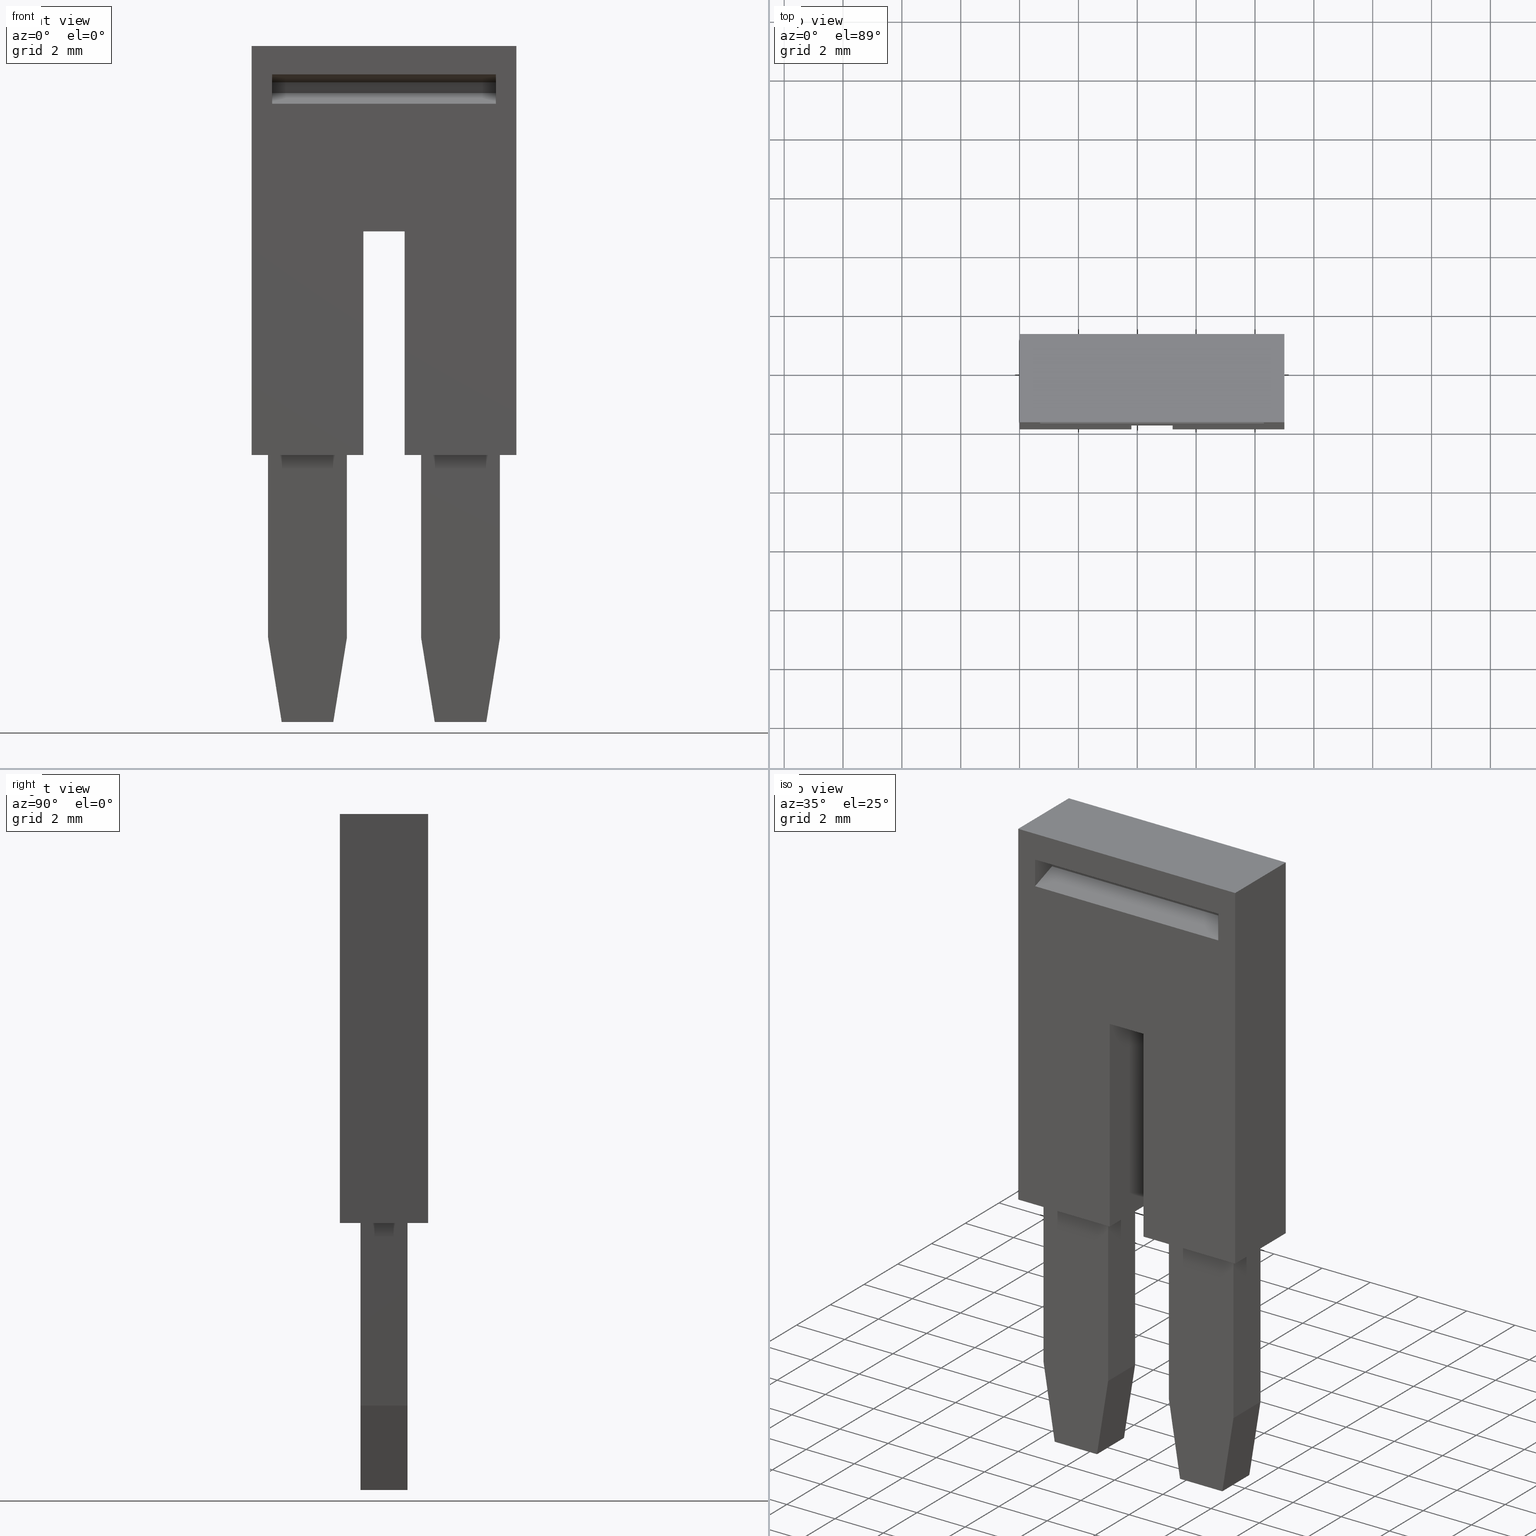
[diagram: canonical four-view strip — front | top / right | iso, engineering-drawing reading convention]
A machine part, canonical four-view strip (front | top / right | iso — engineering-drawing reading convention). The complete STEP part file that produces these views, byte-faithful:
ISO-10303-21;
HEADER;
FILE_DESCRIPTION(('Creo Elements/Direct Modeling STEP Export'),'2;1');
FILE_NAME(
'C:/temp/JobSpoolerServerData/JobServer Files/85c76c25-21e4-4d28-aa7e-fa
32fd0f2ff3/work/output/model.stp','2020-07-18T 0:31:43',(''),(''),
'Creo Elements/Direct Modeling STEP processor for AP214 (Solid Model)',
'Creo Elements/Direct Modeling 20.1A  29-Sep-2018 (C) Parametric Technol
ogy GmbH','');
FILE_SCHEMA(('AUTOMOTIVE_DESIGN { 1 0 10303 214 1 1 1 1 }'));
ENDSEC;
DATA;
#10=CARTESIAN_POINT('',(4.28576854106636,-14.1209712127693,
49.3599999999988));
#20=DIRECTION('',(3.8829925708189E-46,-3.08148791101716E-33,1.));
#30=DIRECTION('',(1.,1.26010313294955E-13,0.));
#40=AXIS2_PLACEMENT_3D('',#10,#20,#30);
#50=PLANE('',#40);
#60=CARTESIAN_POINT('',(5.60716722168504,-12.6051239999998,
49.3599999999988));
#70=DIRECTION('',(1.26010313294955E-13,-1.,-3.08148791101716E-33));
#80=VECTOR('',#70,1.);
#90=LINE('',#60,#80);
#100=CARTESIAN_POINT('',(5.6071672216846,-9.17500000000018,
49.3599999999988));
#110=VERTEX_POINT('',#100);
#120=CARTESIAN_POINT('',(5.60716722168636,-23.0750000000002,
49.3599999999988));
#130=VERTEX_POINT('',#120);
#140=EDGE_CURVE('',#110,#130,#90,.T.);
#150=ORIENTED_EDGE('',*,*,#140,.T.);
#160=CARTESIAN_POINT('',(5.60716722168535,-9.17500000000018,
49.3599999999988));
#170=DIRECTION('',(1.,1.26010313294955E-13,0.));
#180=VECTOR('',#170,1.);
#190=LINE('',#160,#180);
#200=CARTESIAN_POINT('',(2.6071672216846,-9.17500000000056,
49.3599999999988));
#210=VERTEX_POINT('',#200);
#220=EDGE_CURVE('',#210,#110,#190,.T.);
#230=ORIENTED_EDGE('',*,*,#220,.T.);
#240=CARTESIAN_POINT('',(2.60716722168503,-12.6051240000002,
49.3599999999988));
#250=DIRECTION('',(1.26010313294955E-13,-1.,-3.08148791101716E-33));
#260=VECTOR('',#250,1.);
#270=LINE('',#240,#260);
#280=CARTESIAN_POINT('',(2.60716722168635,-23.0750000000006,
49.3599999999988));
#290=VERTEX_POINT('',#280);
#300=EDGE_CURVE('',#210,#290,#270,.T.);
#310=ORIENTED_EDGE('',*,*,#300,.F.);
#320=CARTESIAN_POINT('',(5.60716722168535,-23.0750000000002,
49.3599999999988));
#330=DIRECTION('',(1.,1.26010313294955E-13,0.));
#340=VECTOR('',#330,1.);
#350=LINE('',#320,#340);
#360=EDGE_CURVE('',#290,#130,#350,.T.);
#370=ORIENTED_EDGE('',*,*,#360,.F.);
#380=EDGE_LOOP('',(#370,#310,#230,#150));
#390=FACE_OUTER_BOUND('',#380,.T.);
#400=ADVANCED_FACE('',(#390),#50,.F.);
#410=COLOUR_RGB('',0.627451002597809,0.129411771893501,0.156862750649452
);
#420=FILL_AREA_STYLE_COLOUR('',#410);
#430=FILL_AREA_STYLE('',(#420));
#440=SURFACE_STYLE_FILL_AREA(#430);
#450=SURFACE_SIDE_STYLE('',(#440));
#460=SURFACE_STYLE_USAGE(.BOTH.,#450);
#470=PRESENTATION_STYLE_ASSIGNMENT((#460));
#480=CARTESIAN_POINT('',(5.60716722168476,-10.4163739892137,
49.6255163824959));
#490=DIRECTION('',(1.,1.26010313294955E-13,3.88299257081841E-46));
#500=DIRECTION('',(1.26010313294955E-13,-1.,-3.08148791101716E-33));
#510=AXIS2_PLACEMENT_3D('',#480,#490,#500);
#520=PLANE('',#510);
#530=CARTESIAN_POINT('',(5.60716722168485,-11.1389702342664,47.074984));
#540=DIRECTION('',(5.08939746052553E-30,-4.04088134360551E-17,-1.));
#550=VECTOR('',#540,1.);
#560=LINE('',#530,#550);
#570=CARTESIAN_POINT('',(5.60716722168485,-11.1389702342664,
57.6599999999988));
#580=VERTEX_POINT('',#570);
#590=CARTESIAN_POINT('',(5.60716722168485,-11.1389702342664,
50.0599999999988));
#600=VERTEX_POINT('',#590);
#610=EDGE_CURVE('',#580,#600,#560,.T.);
#620=ORIENTED_EDGE('',*,*,#610,.F.);
#630=CARTESIAN_POINT('',(5.607167221685,-12.305124,50.0599999999988));
#640=DIRECTION('',(-1.26010313294955E-13,1.,0.));
#650=VECTOR('',#640,1.);
#660=LINE('',#630,#650);
#670=CARTESIAN_POINT('',(5.60716722168473,-10.1410254037846,
50.0599999999988));
#680=VERTEX_POINT('',#670);
#690=EDGE_CURVE('',#600,#680,#660,.T.);
#700=ORIENTED_EDGE('',*,*,#690,.F.);
#710=CARTESIAN_POINT('',(5.60716722168473,-10.1410254037846,47.074984));
#720=DIRECTION('',(3.74687937002048E-30,-2.97483362866748E-17,1.));
#730=VECTOR('',#720,1.);
#740=LINE('',#710,#730);
#750=CARTESIAN_POINT('',(5.60716722168473,-10.1410254037846,
57.6599999999988));
#760=VERTEX_POINT('',#750);
#770=EDGE_CURVE('',#680,#760,#740,.T.);
#780=ORIENTED_EDGE('',*,*,#770,.F.);
#790=CARTESIAN_POINT('',(5.607167221685,-12.305124,57.6599999999988));
#800=DIRECTION('',(1.26010313294955E-13,-1.,0.));
#810=VECTOR('',#800,1.);
#820=LINE('',#790,#810);
#830=EDGE_CURVE('',#760,#580,#820,.T.);
#840=ORIENTED_EDGE('',*,*,#830,.F.);
#850=EDGE_LOOP('',(#840,#780,#700,#620));
#860=FACE_BOUND('',#850,.T.);
#870=ORIENTED_EDGE('',*,*,#140,.F.);
#880=CARTESIAN_POINT('',(5.60716722168636,-23.0750000000002,
60.6450159999975));
#890=DIRECTION('',(0.,3.08148791101677E-33,-1.));
#900=VECTOR('',#890,1.);
#910=LINE('',#880,#900);
#920=CARTESIAN_POINT('',(5.60716722168636,-23.0750000000002,
53.1599999999988));
#930=VERTEX_POINT('',#920);
#940=EDGE_CURVE('',#930,#130,#910,.T.);
#950=ORIENTED_EDGE('',*,*,#940,.T.);
#960=CARTESIAN_POINT('',(5.60716722168504,-12.6051239999998,
53.1599999999988));
#970=DIRECTION('',(1.26010313294955E-13,-1.,-3.08148791101716E-33));
#980=VECTOR('',#970,1.);
#990=LINE('',#960,#980);
#1000=CARTESIAN_POINT('',(5.6071672216854,-15.4750000000002,
53.1599999999988));
#1010=VERTEX_POINT('',#1000);
#1020=EDGE_CURVE('',#1010,#930,#990,.T.);
#1030=ORIENTED_EDGE('',*,*,#1020,.T.);
#1040=CARTESIAN_POINT('',(5.6071672216854,-15.4750000000002,
60.6450159999975));
#1050=DIRECTION('',(0.,-3.08148791101677E-33,1.));
#1060=VECTOR('',#1050,1.);
#1070=LINE('',#1040,#1060);
#1080=CARTESIAN_POINT('',(5.6071672216854,-15.4750000000002,
54.5599999999988));
#1090=VERTEX_POINT('',#1080);
#1100=EDGE_CURVE('',#1010,#1090,#1070,.T.);
#1110=ORIENTED_EDGE('',*,*,#1100,.F.);
#1120=CARTESIAN_POINT('',(5.60716722168504,-12.6051239999998,
54.5599999999988));
#1130=DIRECTION('',(1.26010313294955E-13,-1.,-3.08148791101716E-33));
#1140=VECTOR('',#1130,1.);
#1150=LINE('',#1120,#1140);
#1160=CARTESIAN_POINT('',(5.60716722168636,-23.0750000000002,
54.5599999999988));
#1170=VERTEX_POINT('',#1160);
#1180=EDGE_CURVE('',#1090,#1170,#1150,.T.);
#1190=ORIENTED_EDGE('',*,*,#1180,.F.);
#1200=CARTESIAN_POINT('',(5.60716722168636,-23.0750000000002,
60.6450159999975));
#1210=DIRECTION('',(0.,3.08148791101677E-33,-1.));
#1220=VECTOR('',#1210,1.);
#1230=LINE('',#1200,#1220);
#1240=CARTESIAN_POINT('',(5.60716722168636,-23.0750000000002,
58.3599999999988));
#1250=VERTEX_POINT('',#1240);
#1260=EDGE_CURVE('',#1250,#1170,#1230,.T.);
#1270=ORIENTED_EDGE('',*,*,#1260,.T.);
#1280=CARTESIAN_POINT('',(5.60716722168504,-12.6051239999998,
58.3599999999988));
#1290=DIRECTION('',(1.26010313294955E-13,-1.,-3.08148791101716E-33));
#1300=VECTOR('',#1290,1.);
#1310=LINE('',#1280,#1300);
#1320=CARTESIAN_POINT('',(5.6071672216846,-9.17500000000018,
58.3599999999988));
#1330=VERTEX_POINT('',#1320);
#1340=EDGE_CURVE('',#1330,#1250,#1310,.T.);
#1350=ORIENTED_EDGE('',*,*,#1340,.T.);
#1360=CARTESIAN_POINT('',(5.60716722168461,-9.17500000000018,
60.6450159999975));
#1370=DIRECTION('',(0.,-3.08148791101677E-33,1.));
#1380=VECTOR('',#1370,1.);
#1390=LINE('',#1360,#1380);
#1400=EDGE_CURVE('',#110,#1330,#1390,.T.);
#1410=ORIENTED_EDGE('',*,*,#1400,.T.);
#1420=EDGE_LOOP('',(#1410,#1350,#1270,#1190,#1110,#1030,#950,#870));
#1430=FACE_OUTER_BOUND('',#1420,.T.);
#1440=ADVANCED_FACE('',(#860,#1430),#520,.T.);
#1450=COLOUR_RGB('',0.627451002597809,0.129411771893501,
0.156862750649452);
#1460=FILL_AREA_STYLE_COLOUR('',#1450);
#1470=FILL_AREA_STYLE('',(#1460));
#1480=SURFACE_STYLE_FILL_AREA(#1470);
#1490=SURFACE_SIDE_STYLE('',(#1480));
#1500=SURFACE_STYLE_USAGE(.BOTH.,#1490);
#1510=PRESENTATION_STYLE_ASSIGNMENT((#1500));
#1520=CARTESIAN_POINT('',(3.21402809924109,-15.4750000000005,
55.186056195176));
#1530=DIRECTION('',(1.26010313294955E-13,-1.,-3.08148791101677E-33));
#1540=DIRECTION('',(-1.,-1.26010313294955E-13,0.));
#1550=AXIS2_PLACEMENT_3D('',#1520,#1530,#1540);
#1560=PLANE('',#1550);
#1570=CARTESIAN_POINT('',(2.6071672216854,-15.4750000000006,
60.6450159999975));
#1580=DIRECTION('',(0.,-3.08148791101677E-33,1.));
#1590=VECTOR('',#1580,1.);
#1600=LINE('',#1570,#1590);
#1610=CARTESIAN_POINT('',(2.6071672216854,-15.4750000000006,
53.1599999999988));
#1620=VERTEX_POINT('',#1610);
#1630=CARTESIAN_POINT('',(2.6071672216854,-15.4750000000006,
54.5599999999988));
#1640=VERTEX_POINT('',#1630);
#1650=EDGE_CURVE('',#1620,#1640,#1600,.T.);
#1660=ORIENTED_EDGE('',*,*,#1650,.F.);
#1670=CARTESIAN_POINT('',(2.60716722168541,-15.4750000000006,
54.5599999999988));
#1680=DIRECTION('',(-1.,-1.26010313294955E-13,0.));
#1690=VECTOR('',#1680,1.);
#1700=LINE('',#1670,#1690);
#1710=EDGE_CURVE('',#1090,#1640,#1700,.T.);
#1720=ORIENTED_EDGE('',*,*,#1710,.T.);
#1730=ORIENTED_EDGE('',*,*,#1100,.T.);
#1740=CARTESIAN_POINT('',(2.60716722168541,-15.4750000000006,
53.1599999999988));
#1750=DIRECTION('',(-1.,-1.26010313294955E-13,0.));
#1760=VECTOR('',#1750,1.);
#1770=LINE('',#1740,#1760);
#1780=EDGE_CURVE('',#1010,#1620,#1770,.T.);
#1790=ORIENTED_EDGE('',*,*,#1780,.F.);
#1800=EDGE_LOOP('',(#1790,#1730,#1720,#1660));
#1810=FACE_OUTER_BOUND('',#1800,.T.);
#1820=ADVANCED_FACE('',(#1810),#1560,.T.);
#1830=COLOUR_RGB('',0.627451002597809,0.129411771893501,
0.156862750649452);
#1840=FILL_AREA_STYLE_COLOUR('',#1830);
#1850=FILL_AREA_STYLE('',(#1840));
#1860=SURFACE_STYLE_FILL_AREA(#1850);
#1870=SURFACE_SIDE_STYLE('',(#1860));
#1880=SURFACE_STYLE_USAGE(.BOTH.,#1870);
#1890=PRESENTATION_STYLE_ASSIGNMENT((#1880));
#1900=CARTESIAN_POINT('',(3.30716722167661,-23.0750000000005,
50.0099999999971));
#1910=DIRECTION('',(1.26010313294955E-13,-1.,-3.08148791101677E-33));
#1920=DIRECTION('',(0.,-3.08148791101677E-33,1.));
#1930=AXIS2_PLACEMENT_3D('',#1900,#1910,#1920);
#1940=PLANE('',#1930);
#1950=CARTESIAN_POINT('',(5.60716722168535,-23.0750000000002,
52.5999999987961));
#1960=DIRECTION('',(1.,1.26010313294955E-13,8.57252759403298E-16));
#1970=VECTOR('',#1960,1.);
#1980=LINE('',#1950,#1970);
#1990=CARTESIAN_POINT('',(3.30716722167658,-23.0750000000005,
52.5999999987961));
#2000=VERTEX_POINT('',#1990);
#2010=CARTESIAN_POINT('',(4.90716722167658,-23.0750000000003,
52.5999999987961));
#2020=VERTEX_POINT('',#2010);
#2030=EDGE_CURVE('',#2000,#2020,#1980,.T.);
#2040=ORIENTED_EDGE('',*,*,#2030,.T.);
#2050=CARTESIAN_POINT('',(3.30716722167659,-23.0750000000005,47.074984))
;
#2060=DIRECTION('',(8.57252759403298E-16,1.07975336402126E-28,-1.));
#2070=VECTOR('',#2060,1.);
#2080=LINE('',#2050,#2070);
#2090=CARTESIAN_POINT('',(3.30716722167659,-23.0750000000005,
49.9199999990358));
#2100=VERTEX_POINT('',#2090);
#2110=EDGE_CURVE('',#2000,#2100,#2080,.T.);
#2120=ORIENTED_EDGE('',*,*,#2110,.F.);
#2130=CARTESIAN_POINT('',(5.60716722168535,-23.0750000000002,
49.9199999990358));
#2140=DIRECTION('',(-1.,-1.26010313294955E-13,-8.57252759403285E-16));
#2150=VECTOR('',#2140,1.);
#2160=LINE('',#2130,#2150);
#2170=CARTESIAN_POINT('',(4.90716722167659,-23.0750000000003,
49.9199999990358));
#2180=VERTEX_POINT('',#2170);
#2190=EDGE_CURVE('',#2180,#2100,#2160,.T.);
#2200=ORIENTED_EDGE('',*,*,#2190,.T.);
#2210=CARTESIAN_POINT('',(4.90716722167659,-23.0750000000003,47.074984))
;
#2220=DIRECTION('',(8.57252759403298E-16,1.07975336402126E-28,-1.));
#2230=VECTOR('',#2220,1.);
#2240=LINE('',#2210,#2230);
#2250=EDGE_CURVE('',#2020,#2180,#2240,.T.);
#2260=ORIENTED_EDGE('',*,*,#2250,.T.);
#2270=EDGE_LOOP('',(#2260,#2200,#2120,#2040));
#2280=FACE_BOUND('',#2270,.T.);
#2290=ORIENTED_EDGE('',*,*,#940,.F.);
#2300=ORIENTED_EDGE('',*,*,#360,.T.);
#2310=CARTESIAN_POINT('',(2.60716722168635,-23.0750000000006,
60.6450159999975));
#2320=DIRECTION('',(0.,3.08148791101677E-33,-1.));
#2330=VECTOR('',#2320,1.);
#2340=LINE('',#2310,#2330);
#2350=CARTESIAN_POINT('',(2.60716722168635,-23.0750000000006,
53.1599999999988));
#2360=VERTEX_POINT('',#2350);
#2370=EDGE_CURVE('',#2360,#290,#2340,.T.);
#2380=ORIENTED_EDGE('',*,*,#2370,.T.);
#2390=CARTESIAN_POINT('',(2.60716722168637,-23.0750000000006,
53.1599999999988));
#2400=DIRECTION('',(1.,1.26010313294955E-13,0.));
#2410=VECTOR('',#2400,1.);
#2420=LINE('',#2390,#2410);
#2430=EDGE_CURVE('',#2360,#930,#2420,.T.);
#2440=ORIENTED_EDGE('',*,*,#2430,.F.);
#2450=EDGE_LOOP('',(#2440,#2380,#2300,#2290));
#2460=FACE_OUTER_BOUND('',#2450,.T.);
#2470=ADVANCED_FACE('',(#2280,#2460),#1940,.T.);
#2480=COLOUR_RGB('',0.627451002597809,0.129411771893501,
0.156862750649452);
#2490=FILL_AREA_STYLE_COLOUR('',#2480);
#2500=FILL_AREA_STYLE('',(#2490));
#2510=SURFACE_STYLE_FILL_AREA(#2500);
#2520=SURFACE_SIDE_STYLE('',(#2510));
#2530=SURFACE_STYLE_USAGE(.BOTH.,#2520);
#2540=PRESENTATION_STYLE_ASSIGNMENT((#2530));
#2550=CARTESIAN_POINT('',(5.60716722168461,-9.17500000000018,
78.8599999999988));
#2560=DIRECTION('',(-1.26010313294955E-13,1.,3.08148791101677E-33));
#2570=DIRECTION('',(0.,3.08148791101677E-33,-1.));
#2580=AXIS2_PLACEMENT_3D('',#2550,#2560,#2570);
#2590=PLANE('',#2580);
#2600=ORIENTED_EDGE('',*,*,#1400,.F.);
#2610=CARTESIAN_POINT('',(2.60716722168461,-9.17500000000056,
58.3599999999988));
#2620=DIRECTION('',(1.,1.26010313294955E-13,0.));
#2630=VECTOR('',#2620,1.);
#2640=LINE('',#2610,#2630);
#2650=CARTESIAN_POINT('',(2.6071672216846,-9.17500000000056,
58.3599999999988));
#2660=VERTEX_POINT('',#2650);
#2670=EDGE_CURVE('',#2660,#1330,#2640,.T.);
#2680=ORIENTED_EDGE('',*,*,#2670,.T.);
#2690=CARTESIAN_POINT('',(2.6071672216846,-9.17500000000056,
60.6450159999975));
#2700=DIRECTION('',(0.,3.08148791101677E-33,-1.));
#2710=VECTOR('',#2700,1.);
#2720=LINE('',#2690,#2710);
#2730=EDGE_CURVE('',#2660,#210,#2720,.T.);
#2740=ORIENTED_EDGE('',*,*,#2730,.F.);
#2750=ORIENTED_EDGE('',*,*,#220,.F.);
#2760=EDGE_LOOP('',(#2750,#2740,#2680,#2600));
#2770=FACE_OUTER_BOUND('',#2760,.T.);
#2780=ADVANCED_FACE('',(#2770),#2590,.T.);
#2790=COLOUR_RGB('',0.627451002597809,0.129411771893501,
0.156862750649452);
#2800=FILL_AREA_STYLE_COLOUR('',#2790);
#2810=FILL_AREA_STYLE('',(#2800));
#2820=SURFACE_STYLE_FILL_AREA(#2810);
#2830=SURFACE_SIDE_STYLE('',(#2820));
#2840=SURFACE_STYLE_USAGE(.BOTH.,#2830);
#2850=PRESENTATION_STYLE_ASSIGNMENT((#2840));
#2860=CARTESIAN_POINT('',(2.60716722168436,-7.23265100000016,
24.0999898000483));
#2870=DIRECTION('',(1.,1.26010313294955E-13,3.88299257081841E-46));
#2880=DIRECTION('',(1.26010313294955E-13,-1.,-3.08148791101716E-33));
#2890=AXIS2_PLACEMENT_3D('',#2860,#2870,#2880);
#2900=PLANE('',#2890);
#2910=CARTESIAN_POINT('',(2.60716722168485,-11.1389702342668,47.074984))
;
#2920=DIRECTION('',(-5.09267671146659E-30,4.04088134360551E-17,-1.));
#2930=VECTOR('',#2920,1.);
#2940=LINE('',#2910,#2930);
#2950=CARTESIAN_POINT('',(2.60716722168485,-11.1389702342668,
57.6599999999988));
#2960=VERTEX_POINT('',#2950);
#2970=CARTESIAN_POINT('',(2.60716722168485,-11.1389702342668,
50.0599999999988));
#2980=VERTEX_POINT('',#2970);
#2990=EDGE_CURVE('',#2960,#2980,#2940,.T.);
#3000=ORIENTED_EDGE('',*,*,#2990,.T.);
#3010=CARTESIAN_POINT('',(2.607167221685,-12.305124,57.6599999999988));
#3020=DIRECTION('',(1.26010313294955E-13,-1.,0.));
#3030=VECTOR('',#3020,1.);
#3040=LINE('',#3010,#3030);
#3050=CARTESIAN_POINT('',(2.60716722168472,-10.141025403785,
57.6599999999988));
#3060=VERTEX_POINT('',#3050);
#3070=EDGE_CURVE('',#3060,#2960,#3040,.T.);
#3080=ORIENTED_EDGE('',*,*,#3070,.T.);
#3090=CARTESIAN_POINT('',(2.60716722168472,-10.141025403785,47.074984));
#3100=DIRECTION('',(-3.74847446553773E-30,2.97483362866747E-17,1.));
#3110=VECTOR('',#3100,1.);
#3120=LINE('',#3090,#3110);
#3130=CARTESIAN_POINT('',(2.60716722168472,-10.141025403785,
50.0599999999988));
#3140=VERTEX_POINT('',#3130);
#3150=EDGE_CURVE('',#3140,#3060,#3120,.T.);
#3160=ORIENTED_EDGE('',*,*,#3150,.T.);
#3170=CARTESIAN_POINT('',(2.607167221685,-12.305124,50.0599999999988));
#3180=DIRECTION('',(-1.26010313294955E-13,1.,0.));
#3190=VECTOR('',#3180,1.);
#3200=LINE('',#3170,#3190);
#3210=EDGE_CURVE('',#2980,#3140,#3200,.T.);
#3220=ORIENTED_EDGE('',*,*,#3210,.T.);
#3230=EDGE_LOOP('',(#3220,#3160,#3080,#3000));
#3240=FACE_BOUND('',#3230,.T.);
#3250=CARTESIAN_POINT('',(2.60716722168503,-12.6051240000002,
58.3599999999988));
#3260=DIRECTION('',(1.26010313294955E-13,-1.,-3.08148791101716E-33));
#3270=VECTOR('',#3260,1.);
#3280=LINE('',#3250,#3270);
#3290=CARTESIAN_POINT('',(2.60716722168635,-23.0750000000006,
58.3599999999988));
#3300=VERTEX_POINT('',#3290);
#3310=EDGE_CURVE('',#2660,#3300,#3280,.T.);
#3320=ORIENTED_EDGE('',*,*,#3310,.F.);
#3330=CARTESIAN_POINT('',(2.60716722168635,-23.0750000000006,
60.6450159999975));
#3340=DIRECTION('',(0.,3.08148791101677E-33,-1.));
#3350=VECTOR('',#3340,1.);
#3360=LINE('',#3330,#3350);
#3370=CARTESIAN_POINT('',(2.60716722168635,-23.0750000000006,
54.5599999999988));
#3380=VERTEX_POINT('',#3370);
#3390=EDGE_CURVE('',#3300,#3380,#3360,.T.);
#3400=ORIENTED_EDGE('',*,*,#3390,.F.);
#3410=CARTESIAN_POINT('',(2.60716722168503,-12.6051240000002,
54.5599999999988));
#3420=DIRECTION('',(1.26010313294955E-13,-1.,-3.08148791101716E-33));
#3430=VECTOR('',#3420,1.);
#3440=LINE('',#3410,#3430);
#3450=EDGE_CURVE('',#1640,#3380,#3440,.T.);
#3460=ORIENTED_EDGE('',*,*,#3450,.T.);
#3470=ORIENTED_EDGE('',*,*,#1650,.T.);
#3480=CARTESIAN_POINT('',(2.60716722168503,-12.6051240000002,
53.1599999999988));
#3490=DIRECTION('',(1.26010313294955E-13,-1.,-3.08148791101716E-33));
#3500=VECTOR('',#3490,1.);
#3510=LINE('',#3480,#3500);
#3520=EDGE_CURVE('',#1620,#2360,#3510,.T.);
#3530=ORIENTED_EDGE('',*,*,#3520,.F.);
#3540=ORIENTED_EDGE('',*,*,#2370,.F.);
#3550=ORIENTED_EDGE('',*,*,#300,.T.);
#3560=ORIENTED_EDGE('',*,*,#2730,.T.);
#3570=EDGE_LOOP('',(#3560,#3550,#3540,#3530,#3470,#3460,#3400,#3320));
#3580=FACE_OUTER_BOUND('',#3570,.T.);
#3590=ADVANCED_FACE('',(#3240,#3580),#2900,.F.);
#3600=COLOUR_RGB('',0.627451002597809,0.129411771893501,
0.156862750649452);
#3610=FILL_AREA_STYLE_COLOUR('',#3600);
#3620=FILL_AREA_STYLE('',(#3610));
#3630=SURFACE_STYLE_FILL_AREA(#3620);
#3640=SURFACE_SIDE_STYLE('',(#3630));
#3650=SURFACE_STYLE_USAGE(.BOTH.,#3640);
#3660=PRESENTATION_STYLE_ASSIGNMENT((#3650));
#3670=CARTESIAN_POINT('',(3.30716722167661,-23.0750000000005,
55.2099999999971));
#3680=DIRECTION('',(1.26010313294955E-13,-1.,-3.08148791101677E-33));
#3690=DIRECTION('',(0.,-3.08148791101677E-33,1.));
#3700=AXIS2_PLACEMENT_3D('',#3670,#3680,#3690);
#3710=PLANE('',#3700);
#3720=CARTESIAN_POINT('',(5.60716722168535,-23.0750000000002,
55.1199999990359));
#3730=DIRECTION('',(-1.,-1.26010313294955E-13,3.2641479565956E-16));
#3740=VECTOR('',#3730,1.);
#3750=LINE('',#3720,#3740);
#3760=CARTESIAN_POINT('',(4.90716722167658,-23.0750000000003,
55.1199999990359));
#3770=VERTEX_POINT('',#3760);
#3780=CARTESIAN_POINT('',(3.30716722167658,-23.0750000000005,
55.1199999990359));
#3790=VERTEX_POINT('',#3780);
#3800=EDGE_CURVE('',#3770,#3790,#3750,.T.);
#3810=ORIENTED_EDGE('',*,*,#3800,.T.);
#3820=CARTESIAN_POINT('',(4.90716722167659,-23.0750000000003,47.074984))
;
#3830=DIRECTION('',(8.57252759403298E-16,1.07975336402126E-28,-1.));
#3840=VECTOR('',#3830,1.);
#3850=LINE('',#3820,#3840);
#3860=CARTESIAN_POINT('',(4.90716722167658,-23.0750000000003,
57.7999999990348));
#3870=VERTEX_POINT('',#3860);
#3880=EDGE_CURVE('',#3870,#3770,#3850,.T.);
#3890=ORIENTED_EDGE('',*,*,#3880,.T.);
#3900=CARTESIAN_POINT('',(5.60716722168535,-23.0750000000002,
57.7999999990348));
#3910=DIRECTION('',(-1.,-1.26010313294955E-13,-1.14423774522321E-17));
#3920=VECTOR('',#3910,1.);
#3930=LINE('',#3900,#3920);
#3940=CARTESIAN_POINT('',(3.30716722167658,-23.0750000000005,
57.7999999990348));
#3950=VERTEX_POINT('',#3940);
#3960=EDGE_CURVE('',#3870,#3950,#3930,.T.);
#3970=ORIENTED_EDGE('',*,*,#3960,.F.);
#3980=CARTESIAN_POINT('',(3.30716722167659,-23.0750000000005,47.074984))
;
#3990=DIRECTION('',(8.57252759403298E-16,1.07975336402126E-28,-1.));
#4000=VECTOR('',#3990,1.);
#4010=LINE('',#3980,#4000);
#4020=EDGE_CURVE('',#3950,#3790,#4010,.T.);
#4030=ORIENTED_EDGE('',*,*,#4020,.F.);
#4040=EDGE_LOOP('',(#4030,#3970,#3890,#3810));
#4050=FACE_BOUND('',#4040,.T.);
#4060=ORIENTED_EDGE('',*,*,#3390,.T.);
#4070=CARTESIAN_POINT('',(2.60716722168637,-23.0750000000006,
58.3599999999988));
#4080=DIRECTION('',(-1.,-1.26010313294955E-13,0.));
#4090=VECTOR('',#4080,1.);
#4100=LINE('',#4070,#4090);
#4110=EDGE_CURVE('',#1250,#3300,#4100,.T.);
#4120=ORIENTED_EDGE('',*,*,#4110,.T.);
#4130=ORIENTED_EDGE('',*,*,#1260,.F.);
#4140=CARTESIAN_POINT('',(2.60716722168637,-23.0750000000006,
54.5599999999988));
#4150=DIRECTION('',(-1.,-1.26010313294955E-13,0.));
#4160=VECTOR('',#4150,1.);
#4170=LINE('',#4140,#4160);
#4180=EDGE_CURVE('',#1170,#3380,#4170,.T.);
#4190=ORIENTED_EDGE('',*,*,#4180,.F.);
#4200=EDGE_LOOP('',(#4190,#4130,#4120,#4060));
#4210=FACE_OUTER_BOUND('',#4200,.T.);
#4220=ADVANCED_FACE('',(#4050,#4210),#3710,.T.);
#4230=COLOUR_RGB('',0.627451002597809,0.129411771893501,
0.156862750649452);
#4240=FILL_AREA_STYLE_COLOUR('',#4230);
#4250=FILL_AREA_STYLE('',(#4240));
#4260=SURFACE_STYLE_FILL_AREA(#4250);
#4270=SURFACE_SIDE_STYLE('',(#4260));
#4280=SURFACE_STYLE_USAGE(.BOTH.,#4270);
#4290=PRESENTATION_STYLE_ASSIGNMENT((#4280));
#4300=CARTESIAN_POINT('',(5.60716722168464,-9.47500000000018,
58.3599999999988));
#4310=DIRECTION('',(3.8829925708189E-46,-3.08148791101716E-33,1.));
#4320=DIRECTION('',(-1.26010313294955E-13,1.,3.08148791101716E-33));
#4330=AXIS2_PLACEMENT_3D('',#4300,#4310,#4320);
#4340=PLANE('',#4330);
#4350=ORIENTED_EDGE('',*,*,#4110,.F.);
#4360=ORIENTED_EDGE('',*,*,#3310,.T.);
#4370=ORIENTED_EDGE('',*,*,#2670,.F.);
#4380=ORIENTED_EDGE('',*,*,#1340,.F.);
#4390=EDGE_LOOP('',(#4380,#4370,#4360,#4350));
#4400=FACE_OUTER_BOUND('',#4390,.T.);
#4410=ADVANCED_FACE('',(#4400),#4340,.T.);
#4420=COLOUR_RGB('',0.627451002597809,0.129411771893501,
0.156862750649452);
#4430=FILL_AREA_STYLE_COLOUR('',#4420);
#4440=FILL_AREA_STYLE('',(#4430));
#4450=SURFACE_STYLE_FILL_AREA(#4440);
#4460=SURFACE_SIDE_STYLE('',(#4450));
#4470=SURFACE_STYLE_USAGE(.BOTH.,#4460);
#4480=PRESENTATION_STYLE_ASSIGNMENT((#4470));
#4490=CARTESIAN_POINT('',(2.60716722168541,-15.4750000000006,
54.5599999999988));
#4500=DIRECTION('',(-3.8829925708189E-46,3.08148791101716E-33,-1.));
#4510=DIRECTION('',(-1.26010313294955E-13,1.,3.08148791101716E-33));
#4520=AXIS2_PLACEMENT_3D('',#4490,#4500,#4510);
#4530=PLANE('',#4520);
#4540=ORIENTED_EDGE('',*,*,#3450,.F.);
#4550=ORIENTED_EDGE('',*,*,#4180,.T.);
#4560=ORIENTED_EDGE('',*,*,#1180,.T.);
#4570=ORIENTED_EDGE('',*,*,#1710,.F.);
#4580=EDGE_LOOP('',(#4570,#4560,#4550,#4540));
#4590=FACE_OUTER_BOUND('',#4580,.T.);
#4600=ADVANCED_FACE('',(#4590),#4530,.T.);
#4610=COLOUR_RGB('',0.627451002597809,0.129411771893501,
0.156862750649452);
#4620=FILL_AREA_STYLE_COLOUR('',#4610);
#4630=FILL_AREA_STYLE('',(#4620));
#4640=SURFACE_STYLE_FILL_AREA(#4630);
#4650=SURFACE_SIDE_STYLE('',(#4640));
#4660=SURFACE_STYLE_USAGE(.BOTH.,#4650);
#4670=PRESENTATION_STYLE_ASSIGNMENT((#4660));
#4680=CARTESIAN_POINT('',(1.99104413266707,-8.19150700000024,
53.1599999999988));
#4690=DIRECTION('',(-3.8829925708189E-46,3.08148791101716E-33,-1.));
#4700=DIRECTION('',(1.26010313294955E-13,-1.,-3.08148791101716E-33));
#4710=AXIS2_PLACEMENT_3D('',#4680,#4690,#4700);
#4720=PLANE('',#4710);
#4730=ORIENTED_EDGE('',*,*,#3520,.T.);
#4740=ORIENTED_EDGE('',*,*,#1780,.T.);
#4750=ORIENTED_EDGE('',*,*,#1020,.F.);
#4760=ORIENTED_EDGE('',*,*,#2430,.T.);
#4770=EDGE_LOOP('',(#4760,#4750,#4740,#4730));
#4780=FACE_OUTER_BOUND('',#4770,.T.);
#4790=ADVANCED_FACE('',(#4780),#4720,.F.);
#4800=COLOUR_RGB('',0.627451002597809,0.129411771893501,
0.156862750649452);
#4810=FILL_AREA_STYLE_COLOUR('',#4800);
#4820=FILL_AREA_STYLE('',(#4810));
#4830=SURFACE_STYLE_FILL_AREA(#4820);
#4840=SURFACE_SIDE_STYLE('',(#4830));
#4850=SURFACE_STYLE_USAGE(.BOTH.,#4840);
#4860=PRESENTATION_STYLE_ASSIGNMENT((#4850));
#4870=CARTESIAN_POINT('',(3.30716722167767,-31.7296842117125,
55.5153367786717));
#4880=DIRECTION('',(-2.09283613280267E-14,0.159368423411923,
0.987219178105449));
#4890=DIRECTION('',(1.24263178903127E-13,-0.987219178105449,
0.159368423411923));
#4900=AXIS2_PLACEMENT_3D('',#4870,#4880,#4890);
#4910=PLANE('',#4900);
#4920=CARTESIAN_POINT('',(3.30716722167523,-12.305124,52.3795979224317))
;
#4930=DIRECTION('',(-1.24261712031171E-13,0.987219178105449,
-0.159368423411923));
#4940=VECTOR('',#4930,1.);
#4950=LINE('',#4920,#4940);
#4960=CARTESIAN_POINT('',(3.30716722167773,-32.1500000022972,
55.5831890513648));
#4970=VERTEX_POINT('',#4960);
#4980=CARTESIAN_POINT('',(3.30716722167736,-29.2807420542178,
55.1199999990359));
#4990=VERTEX_POINT('',#4980);
#5000=EDGE_CURVE('',#4970,#4990,#4950,.T.);
#5010=ORIENTED_EDGE('',*,*,#5000,.T.);
#5020=CARTESIAN_POINT('',(3.30716722167773,-32.1500000022972,
55.5831890513648));
#5030=DIRECTION('',(-1.,-1.26010313294958E-13,-8.57252759403298E-16));
#5040=VECTOR('',#5030,1.);
#5050=LINE('',#5020,#5040);
#5060=CARTESIAN_POINT('',(4.90716722167773,-32.150000002297,
55.5831890513648));
#5070=VERTEX_POINT('',#5060);
#5080=EDGE_CURVE('',#5070,#4970,#5050,.T.);
#5090=ORIENTED_EDGE('',*,*,#5080,.T.);
#5100=CARTESIAN_POINT('',(4.90716722167523,-12.305124,52.3795979224317))
;
#5110=DIRECTION('',(-1.24261712031171E-13,0.987219178105449,
-0.159368423411923));
#5120=VECTOR('',#5110,1.);
#5130=LINE('',#5100,#5120);
#5140=CARTESIAN_POINT('',(4.90716722167736,-29.2807420542176,
55.1199999990359));
#5150=VERTEX_POINT('',#5140);
#5160=EDGE_CURVE('',#5070,#5150,#5130,.T.);
#5170=ORIENTED_EDGE('',*,*,#5160,.F.);
#5180=CARTESIAN_POINT('',(5.60716722168535,-29.2807420542175,
55.1199999990359));
#5190=DIRECTION('',(1.,1.33342627224167E-13,-3.26414795659562E-16));
#5200=VECTOR('',#5190,1.);
#5210=LINE('',#5180,#5200);
#5220=EDGE_CURVE('',#4990,#5150,#5210,.T.);
#5230=ORIENTED_EDGE('',*,*,#5220,.T.);
#5240=EDGE_LOOP('',(#5230,#5170,#5090,#5010));
#5250=FACE_OUTER_BOUND('',#5240,.T.);
#5260=ADVANCED_FACE('',(#5250),#4910,.F.);
#5270=COLOUR_RGB('',0.823529481887817,0.823529481887817,
0.784313797950745);
#5280=FILL_AREA_STYLE_COLOUR('',#5270);
#5290=FILL_AREA_STYLE('',(#5280));
#5300=SURFACE_STYLE_FILL_AREA(#5290);
#5310=SURFACE_SIDE_STYLE('',(#5300));
#5320=SURFACE_STYLE_USAGE(.BOTH.,#5310);
#5330=PRESENTATION_STYLE_ASSIGNMENT((#5320));
#5340=CARTESIAN_POINT('',(3.30716722167602,-18.5750000001071,
52.5999999987961));
#5350=DIRECTION('',(8.57252759403268E-16,2.37897214115664E-16,-1.));
#5360=DIRECTION('',(-1.26010313294958E-13,1.,2.37897214115556E-16));
#5370=AXIS2_PLACEMENT_3D('',#5340,#5350,#5360);
#5380=PLANE('',#5370);
#5390=CARTESIAN_POINT('',(5.60716722168535,-29.2807420639548,
52.5999999987961));
#5400=DIRECTION('',(-1.,-1.26010313294958E-13,-8.572527594033E-16));
#5410=VECTOR('',#5400,1.);
#5420=LINE('',#5390,#5410);
#5430=CARTESIAN_POINT('',(4.90716722167737,-29.2807420639549,
52.5999999987961));
#5440=VERTEX_POINT('',#5430);
#5450=CARTESIAN_POINT('',(3.30716722167737,-29.2807420639551,
52.5999999987961));
#5460=VERTEX_POINT('',#5450);
#5470=EDGE_CURVE('',#5440,#5460,#5420,.T.);
#5480=ORIENTED_EDGE('',*,*,#5470,.F.);
#5490=CARTESIAN_POINT('',(3.30716722167523,-12.305124,52.5999999987961))
;
#5500=DIRECTION('',(1.26010313294958E-13,-1.,-2.37897214115556E-16));
#5510=VECTOR('',#5500,1.);
#5520=LINE('',#5490,#5510);
#5530=EDGE_CURVE('',#2000,#5460,#5520,.T.);
#5540=ORIENTED_EDGE('',*,*,#5530,.T.);
#5550=ORIENTED_EDGE('',*,*,#2030,.F.);
#5560=CARTESIAN_POINT('',(4.90716722167523,-12.305124,52.5999999987961))
;
#5570=DIRECTION('',(1.26010313294958E-13,-1.,-2.37897214115556E-16));
#5580=VECTOR('',#5570,1.);
#5590=LINE('',#5560,#5580);
#5600=EDGE_CURVE('',#2020,#5440,#5590,.T.);
#5610=ORIENTED_EDGE('',*,*,#5600,.F.);
#5620=EDGE_LOOP('',(#5610,#5550,#5540,#5480));
#5630=FACE_OUTER_BOUND('',#5620,.T.);
#5640=ADVANCED_FACE('',(#5630),#5380,.F.);
#5650=COLOUR_RGB('',0.823529481887817,0.823529481887817,
0.784313797950745);
#5660=FILL_AREA_STYLE_COLOUR('',#5650);
#5670=FILL_AREA_STYLE('',(#5660));
#5680=SURFACE_STYLE_FILL_AREA(#5670);
#5690=SURFACE_SIDE_STYLE('',(#5680));
#5700=SURFACE_STYLE_USAGE(.BOTH.,#5690);
#5710=PRESENTATION_STYLE_ASSIGNMENT((#5700));
#5720=CARTESIAN_POINT('',(4.90716722167535,-13.2750000000011,
53.8599999999985));
#5730=DIRECTION('',(-1.,-1.26010313294958E-13,-8.57252759403298E-16));
#5740=DIRECTION('',(-8.57252759384976E-16,-1.45401068734245E-13,1.));
#5750=AXIS2_PLACEMENT_3D('',#5720,#5730,#5740);
#5760=PLANE('',#5750);
#5770=CARTESIAN_POINT('',(4.90716722167523,-12.305124,47.1795979224319))
;
#5780=DIRECTION('',(-1.24261712031171E-13,0.987219178105449,
-0.159368423411923));
#5790=VECTOR('',#5780,1.);
#5800=LINE('',#5770,#5790);
#5810=CARTESIAN_POINT('',(4.90716722167773,-32.1500000022977,
50.383189051365));
#5820=VERTEX_POINT('',#5810);
#5830=CARTESIAN_POINT('',(4.90716722167737,-29.2807420542216,
49.9199999990367));
#5840=VERTEX_POINT('',#5830);
#5850=EDGE_CURVE('',#5820,#5840,#5800,.T.);
#5860=ORIENTED_EDGE('',*,*,#5850,.T.);
#5870=CARTESIAN_POINT('',(4.90716722167773,-32.1500000000052,
53.4602658398145));
#5880=DIRECTION('',(-8.57252759421504E-16,1.44485161757993E-13,1.));
#5890=VECTOR('',#5880,1.);
#5900=LINE('',#5870,#5890);
#5910=CARTESIAN_POINT('',(4.90716722167773,-32.1500000022975,
52.136810948039));
#5920=VERTEX_POINT('',#5910);
#5930=EDGE_CURVE('',#5820,#5920,#5900,.T.);
#5940=ORIENTED_EDGE('',*,*,#5930,.F.);
#5950=CARTESIAN_POINT('',(4.90716722167523,-12.305124,55.3404020769722))
;
#5960=DIRECTION('',(-1.24539267787327E-13,0.987219178105449,
0.159368423411924));
#5970=VECTOR('',#5960,1.);
#5980=LINE('',#5950,#5970);
#5990=EDGE_CURVE('',#5920,#5440,#5980,.T.);
#6000=ORIENTED_EDGE('',*,*,#5990,.F.);
#6010=ORIENTED_EDGE('',*,*,#5600,.T.);
#6020=ORIENTED_EDGE('',*,*,#2250,.F.);
#6030=CARTESIAN_POINT('',(4.90716722167523,-12.305124,49.9199999990342))
;
#6040=DIRECTION('',(-1.26010313294958E-13,1.,-1.44925274306014E-13));
#6050=VECTOR('',#6040,1.);
#6060=LINE('',#6030,#6050);
#6070=EDGE_CURVE('',#5840,#2180,#6060,.T.);
#6080=ORIENTED_EDGE('',*,*,#6070,.T.);
#6090=EDGE_LOOP('',(#6080,#6020,#6010,#6000,#5940,#5860));
#6100=FACE_OUTER_BOUND('',#6090,.T.);
#6110=ADVANCED_FACE('',(#6100),#5760,.F.);
#6120=COLOUR_RGB('',0.823529481887817,0.823529481887817,
0.784313797950745);
#6130=FILL_AREA_STYLE_COLOUR('',#6120);
#6140=FILL_AREA_STYLE('',(#6130));
#6150=SURFACE_STYLE_FILL_AREA(#6140);
#6160=SURFACE_SIDE_STYLE('',(#6150));
#6170=SURFACE_STYLE_USAGE(.BOTH.,#6160);
#6180=PRESENTATION_STYLE_ASSIGNMENT((#6170));
#6190=CARTESIAN_POINT('',(3.30716722167535,-13.2750000000013,
53.8599999999985));
#6200=DIRECTION('',(-1.,-1.26010313294958E-13,-8.57252759403298E-16));
#6210=DIRECTION('',(-8.57252759384976E-16,-1.45401068734245E-13,1.));
#6220=AXIS2_PLACEMENT_3D('',#6190,#6200,#6210);
#6230=PLANE('',#6220);
#6240=CARTESIAN_POINT('',(3.30716722167522,-12.305124,57.7999999990348))
;
#6250=DIRECTION('',(-1.26010313294958E-13,1.,-9.11930314421364E-17));
#6260=VECTOR('',#6250,1.);
#6270=LINE('',#6240,#6260);
#6280=CARTESIAN_POINT('',(3.30716722167736,-29.2807420624753,
57.7999999990348));
#6290=VERTEX_POINT('',#6280);
#6300=EDGE_CURVE('',#6290,#3950,#6270,.T.);
#6310=ORIENTED_EDGE('',*,*,#6300,.T.);
#6320=CARTESIAN_POINT('',(3.30716722167522,-12.305124,60.5404020769721))
;
#6330=DIRECTION('',(-1.24539267787327E-13,0.987219178105449,
0.159368423411924));
#6340=VECTOR('',#6330,1.);
#6350=LINE('',#6320,#6340);
#6360=CARTESIAN_POINT('',(3.30716722167772,-32.150000002297,
57.336810948039));
#6370=VERTEX_POINT('',#6360);
#6380=EDGE_CURVE('',#6370,#6290,#6350,.T.);
#6390=ORIENTED_EDGE('',*,*,#6380,.T.);
#6400=CARTESIAN_POINT('',(3.30716722167772,-32.1500000000062,
58.6602658398145));
#6410=DIRECTION('',(-8.57252759421504E-16,1.44485161757993E-13,1.));
#6420=VECTOR('',#6410,1.);
#6430=LINE('',#6400,#6420);
#6440=EDGE_CURVE('',#4970,#6370,#6430,.T.);
#6450=ORIENTED_EDGE('',*,*,#6440,.T.);
#6460=ORIENTED_EDGE('',*,*,#5000,.F.);
#6470=CARTESIAN_POINT('',(3.30716722167523,-12.305124,55.1199999990359))
;
#6480=DIRECTION('',(-1.26010313294958E-13,1.,-2.37897214115543E-16));
#6490=VECTOR('',#6480,1.);
#6500=LINE('',#6470,#6490);
#6510=EDGE_CURVE('',#4990,#3790,#6500,.T.);
#6520=ORIENTED_EDGE('',*,*,#6510,.F.);
#6530=ORIENTED_EDGE('',*,*,#4020,.T.);
#6540=EDGE_LOOP('',(#6530,#6520,#6460,#6450,#6390,#6310));
#6550=FACE_OUTER_BOUND('',#6540,.T.);
#6560=ADVANCED_FACE('',(#6550),#6230,.T.);
#6570=COLOUR_RGB('',0.823529481887817,0.823529481887817,
0.784313797950745);
#6580=FILL_AREA_STYLE_COLOUR('',#6570);
#6590=FILL_AREA_STYLE('',(#6580));
#6600=SURFACE_STYLE_FILL_AREA(#6590);
#6610=SURFACE_SIDE_STYLE('',(#6600));
#6620=SURFACE_STYLE_USAGE(.BOTH.,#6610);
#6630=PRESENTATION_STYLE_ASSIGNMENT((#6620));
#6640=CARTESIAN_POINT('',(3.30716722169466,-17.9750000022644,
57.7999999990348));
#6650=DIRECTION('',(-1.14423774522562E-17,9.1193031442135E-17,1.));
#6660=DIRECTION('',(1.26010313294955E-13,-1.,9.11930314421364E-17));
#6670=AXIS2_PLACEMENT_3D('',#6640,#6650,#6660);
#6680=PLANE('',#6670);
#6690=CARTESIAN_POINT('',(5.60716722168535,-29.280742062475,
57.7999999990348));
#6700=DIRECTION('',(1.,1.20770879960385E-13,1.14423774522476E-17));
#6710=VECTOR('',#6700,1.);
#6720=LINE('',#6690,#6710);
#6730=CARTESIAN_POINT('',(4.90716722167736,-29.2807420624751,
57.7999999990348));
#6740=VERTEX_POINT('',#6730);
#6750=EDGE_CURVE('',#6290,#6740,#6720,.T.);
#6760=ORIENTED_EDGE('',*,*,#6750,.T.);
#6770=ORIENTED_EDGE('',*,*,#6300,.F.);
#6780=ORIENTED_EDGE('',*,*,#3960,.T.);
#6790=CARTESIAN_POINT('',(4.90716722167522,-12.305124,57.7999999990348))
;
#6800=DIRECTION('',(-1.26010313294958E-13,1.,-9.11930314421364E-17));
#6810=VECTOR('',#6800,1.);
#6820=LINE('',#6790,#6810);
#6830=EDGE_CURVE('',#6740,#3870,#6820,.T.);
#6840=ORIENTED_EDGE('',*,*,#6830,.T.);
#6850=EDGE_LOOP('',(#6840,#6780,#6770,#6760));
#6860=FACE_OUTER_BOUND('',#6850,.T.);
#6870=ADVANCED_FACE('',(#6860),#6680,.T.);
#6880=COLOUR_RGB('',0.823529481887817,0.823529481887817,
0.784313797950745);
#6890=FILL_AREA_STYLE_COLOUR('',#6880);
#6900=FILL_AREA_STYLE('',(#6890));
#6910=SURFACE_STYLE_FILL_AREA(#6900);
#6920=SURFACE_SIDE_STYLE('',(#6910));
#6930=SURFACE_STYLE_USAGE(.BOTH.,#6920);
#6940=PRESENTATION_STYLE_ASSIGNMENT((#6930));
#6950=CARTESIAN_POINT('',(4.90716722167523,-12.305124,55.1199999990359))
;
#6960=DIRECTION('',(-1.26010313294958E-13,1.,-2.37897214115543E-16));
#6970=VECTOR('',#6960,1.);
#6980=LINE('',#6950,#6970);
#6990=EDGE_CURVE('',#5150,#3770,#6980,.T.);
#7000=ORIENTED_EDGE('',*,*,#6990,.T.);
#7010=ORIENTED_EDGE('',*,*,#5160,.T.);
#7020=CARTESIAN_POINT('',(4.90716722167772,-32.150000000006,
58.6602658398145));
#7030=DIRECTION('',(-8.57252759421504E-16,1.44485161757993E-13,1.));
#7040=VECTOR('',#7030,1.);
#7050=LINE('',#7020,#7040);
#7060=CARTESIAN_POINT('',(4.90716722167772,-32.1500000022968,
57.336810948039));
#7070=VERTEX_POINT('',#7060);
#7080=EDGE_CURVE('',#5070,#7070,#7050,.T.);
#7090=ORIENTED_EDGE('',*,*,#7080,.F.);
#7100=CARTESIAN_POINT('',(4.90716722167522,-12.305124,60.540402076972));
#7110=DIRECTION('',(-1.24539267787327E-13,0.987219178105449,
0.159368423411924));
#7120=VECTOR('',#7110,1.);
#7130=LINE('',#7100,#7120);
#7140=EDGE_CURVE('',#7070,#6740,#7130,.T.);
#7150=ORIENTED_EDGE('',*,*,#7140,.F.);
#7160=ORIENTED_EDGE('',*,*,#6830,.F.);
#7170=ORIENTED_EDGE('',*,*,#3880,.F.);
#7180=EDGE_LOOP('',(#7170,#7160,#7150,#7090,#7010,#7000));
#7190=FACE_OUTER_BOUND('',#7180,.T.);
#7200=ADVANCED_FACE('',(#7190),#5760,.F.);
#7210=COLOUR_RGB('',0.823529481887817,0.823529481887817,
0.784313797950745);
#7220=FILL_AREA_STYLE_COLOUR('',#7210);
#7230=FILL_AREA_STYLE('',(#7220));
#7240=SURFACE_STYLE_FILL_AREA(#7230);
#7250=SURFACE_SIDE_STYLE('',(#7240));
#7260=SURFACE_STYLE_USAGE(.BOTH.,#7250);
#7270=PRESENTATION_STYLE_ASSIGNMENT((#7260));
#7280=CARTESIAN_POINT('',(3.30716722167737,-29.3585221271379,
57.7874438346561));
#7290=DIRECTION('',(-1.92357685988933E-14,0.159368423411924,
-0.987219178105449));
#7300=DIRECTION('',(-1.2453641694459E-13,0.987219178105449,
0.159368423411924));
#7310=AXIS2_PLACEMENT_3D('',#7280,#7290,#7300);
#7320=PLANE('',#7310);
#7330=ORIENTED_EDGE('',*,*,#6380,.F.);
#7340=ORIENTED_EDGE('',*,*,#6750,.F.);
#7350=ORIENTED_EDGE('',*,*,#7140,.T.);
#7360=CARTESIAN_POINT('',(3.30716722167772,-32.1500000022969,
57.336810948039));
#7370=DIRECTION('',(-1.,-1.26010313294958E-13,-8.57252759403298E-16));
#7380=VECTOR('',#7370,1.);
#7390=LINE('',#7360,#7380);
#7400=EDGE_CURVE('',#7070,#6370,#7390,.T.);
#7410=ORIENTED_EDGE('',*,*,#7400,.F.);
#7420=EDGE_LOOP('',(#7410,#7350,#7340,#7330));
#7430=FACE_OUTER_BOUND('',#7420,.T.);
#7440=ADVANCED_FACE('',(#7430),#7320,.F.);
#7450=COLOUR_RGB('',0.823529481887817,0.823529481887817,
0.784313797950745);
#7460=FILL_AREA_STYLE_COLOUR('',#7450);
#7470=FILL_AREA_STYLE('',(#7460));
#7480=SURFACE_STYLE_FILL_AREA(#7470);
#7490=SURFACE_SIDE_STYLE('',(#7480));
#7500=SURFACE_STYLE_USAGE(.BOTH.,#7490);
#7510=PRESENTATION_STYLE_ASSIGNMENT((#7500));
#7520=CARTESIAN_POINT('',(3.17716482167586,-33.0498680022908,
55.1199999990359));
#7530=DIRECTION('',(3.2641479565953E-16,2.37897214115591E-16,1.));
#7540=DIRECTION('',(-1.2577241608084E-13,1.,-2.3789721411555E-16));
#7550=AXIS2_PLACEMENT_3D('',#7520,#7530,#7540);
#7560=PLANE('',#7550);
#7570=ORIENTED_EDGE('',*,*,#6510,.T.);
#7580=ORIENTED_EDGE('',*,*,#5220,.F.);
#7590=ORIENTED_EDGE('',*,*,#6990,.F.);
#7600=ORIENTED_EDGE('',*,*,#3800,.F.);
#7610=EDGE_LOOP('',(#7600,#7590,#7580,#7570));
#7620=FACE_OUTER_BOUND('',#7610,.T.);
#7630=ADVANCED_FACE('',(#7620),#7560,.F.);
#7640=COLOUR_RGB('',0.823529481887817,0.823529481887817,
0.784313797950745);
#7650=FILL_AREA_STYLE_COLOUR('',#7640);
#7660=FILL_AREA_STYLE('',(#7650));
#7670=SURFACE_STYLE_FILL_AREA(#7660);
#7680=SURFACE_SIDE_STYLE('',(#7670));
#7690=SURFACE_STYLE_USAGE(.BOTH.,#7680);
#7700=PRESENTATION_STYLE_ASSIGNMENT((#7690));
#7710=CARTESIAN_POINT('',(3.3071672216767,-23.9749993186427,
49.9199999990359));
#7720=DIRECTION('',(-8.5725275942156E-16,1.44925274306014E-13,1.));
#7730=DIRECTION('',(1.26010313294958E-13,-1.,1.44925274306014E-13));
#7740=AXIS2_PLACEMENT_3D('',#7710,#7720,#7730);
#7750=PLANE('',#7740);
#7760=ORIENTED_EDGE('',*,*,#2190,.F.);
#7770=CARTESIAN_POINT('',(3.30716722167523,-12.305124,49.9199999990342))
;
#7780=DIRECTION('',(-1.26010313294958E-13,1.,-1.44925274306014E-13));
#7790=VECTOR('',#7780,1.);
#7800=LINE('',#7770,#7790);
#7810=CARTESIAN_POINT('',(3.30716722167737,-29.2807420542218,
49.9199999990367));
#7820=VERTEX_POINT('',#7810);
#7830=EDGE_CURVE('',#7820,#2100,#7800,.T.);
#7840=ORIENTED_EDGE('',*,*,#7830,.T.);
#7850=CARTESIAN_POINT('',(5.60716722168535,-29.2807420542215,
49.9199999990367));
#7860=DIRECTION('',(1.,1.26010313294958E-13,8.57252759403301E-16));
#7870=VECTOR('',#7860,1.);
#7880=LINE('',#7850,#7870);
#7890=EDGE_CURVE('',#7820,#5840,#7880,.T.);
#7900=ORIENTED_EDGE('',*,*,#7890,.F.);
#7910=ORIENTED_EDGE('',*,*,#6070,.F.);
#7920=EDGE_LOOP('',(#7910,#7900,#7840,#7760));
#7930=FACE_OUTER_BOUND('',#7920,.T.);
#7940=ADVANCED_FACE('',(#7930),#7750,.F.);
#7950=COLOUR_RGB('',0.823529481887817,0.823529481887817,
0.784313797950745);
#7960=FILL_AREA_STYLE_COLOUR('',#7950);
#7970=FILL_AREA_STYLE('',(#7960));
#7980=SURFACE_STYLE_FILL_AREA(#7970);
#7990=SURFACE_SIDE_STYLE('',(#7980));
#8000=SURFACE_STYLE_USAGE(.BOTH.,#7990);
#8010=PRESENTATION_STYLE_ASSIGNMENT((#8000));
#8020=ORIENTED_EDGE('',*,*,#2110,.T.);
#8030=ORIENTED_EDGE('',*,*,#5530,.F.);
#8040=CARTESIAN_POINT('',(3.30716722167523,-12.305124,55.3404020769722))
;
#8050=DIRECTION('',(-1.24539267787327E-13,0.987219178105449,
0.159368423411924));
#8060=VECTOR('',#8050,1.);
#8070=LINE('',#8040,#8060);
#8080=CARTESIAN_POINT('',(3.30716722167773,-32.1500000022977,
52.136810948039));
#8090=VERTEX_POINT('',#8080);
#8100=EDGE_CURVE('',#8090,#5460,#8070,.T.);
#8110=ORIENTED_EDGE('',*,*,#8100,.T.);
#8120=CARTESIAN_POINT('',(3.30716722167773,-32.1500000000054,
53.4602658398145));
#8130=DIRECTION('',(-8.57252759421504E-16,1.44485161757993E-13,1.));
#8140=VECTOR('',#8130,1.);
#8150=LINE('',#8120,#8140);
#8160=CARTESIAN_POINT('',(3.30716722167773,-32.1500000022979,
50.383189051365));
#8170=VERTEX_POINT('',#8160);
#8180=EDGE_CURVE('',#8170,#8090,#8150,.T.);
#8190=ORIENTED_EDGE('',*,*,#8180,.T.);
#8200=CARTESIAN_POINT('',(3.30716722167523,-12.305124,47.1795979224318))
;
#8210=DIRECTION('',(-1.24261712031171E-13,0.987219178105449,
-0.159368423411923));
#8220=VECTOR('',#8210,1.);
#8230=LINE('',#8200,#8220);
#8240=EDGE_CURVE('',#8170,#7820,#8230,.T.);
#8250=ORIENTED_EDGE('',*,*,#8240,.F.);
#8260=ORIENTED_EDGE('',*,*,#7830,.F.);
#8270=EDGE_LOOP('',(#8260,#8250,#8190,#8110,#8030,#8020));
#8280=FACE_OUTER_BOUND('',#8270,.T.);
#8290=ADVANCED_FACE('',(#8280),#6230,.T.);
#8300=COLOUR_RGB('',0.823529481887817,0.823529481887817,
0.784313797950745);
#8310=FILL_AREA_STYLE_COLOUR('',#8300);
#8320=FILL_AREA_STYLE('',(#8310));
#8330=SURFACE_STYLE_FILL_AREA(#8320);
#8340=SURFACE_SIDE_STYLE('',(#8330));
#8350=SURFACE_STYLE_USAGE(.BOTH.,#8340);
#8360=PRESENTATION_STYLE_ASSIGNMENT((#8350));
#8370=CARTESIAN_POINT('',(3.30716722167738,-29.3585221271388,
52.5874438346561));
#8380=DIRECTION('',(-1.92357685988933E-14,0.159368423411924,
-0.987219178105449));
#8390=DIRECTION('',(-1.2453641694459E-13,0.987219178105449,
0.159368423411924));
#8400=AXIS2_PLACEMENT_3D('',#8370,#8380,#8390);
#8410=PLANE('',#8400);
#8420=ORIENTED_EDGE('',*,*,#8100,.F.);
#8430=ORIENTED_EDGE('',*,*,#5470,.T.);
#8440=ORIENTED_EDGE('',*,*,#5990,.T.);
#8450=CARTESIAN_POINT('',(3.30716722167773,-32.1500000022977,
52.136810948039));
#8460=DIRECTION('',(-1.,-1.26010313294958E-13,-8.57252759403298E-16));
#8470=VECTOR('',#8460,1.);
#8480=LINE('',#8450,#8470);
#8490=EDGE_CURVE('',#5920,#8090,#8480,.T.);
#8500=ORIENTED_EDGE('',*,*,#8490,.F.);
#8510=EDGE_LOOP('',(#8500,#8440,#8430,#8420));
#8520=FACE_OUTER_BOUND('',#8510,.T.);
#8530=ADVANCED_FACE('',(#8520),#8410,.F.);
#8540=COLOUR_RGB('',0.823529481887817,0.823529481887817,
0.784313797950745);
#8550=FILL_AREA_STYLE_COLOUR('',#8540);
#8560=FILL_AREA_STYLE('',(#8550));
#8570=SURFACE_STYLE_FILL_AREA(#8560);
#8580=SURFACE_SIDE_STYLE('',(#8570));
#8590=SURFACE_STYLE_USAGE(.BOTH.,#8580);
#8600=PRESENTATION_STYLE_ASSIGNMENT((#8590));
#8610=CARTESIAN_POINT('',(3.30716722167772,-32.150000002297,
56.9110536313095));
#8620=DIRECTION('',(-1.26010313294958E-13,1.,-1.44485161757993E-13));
#8630=DIRECTION('',(-8.57252759421504E-16,1.44485161757993E-13,1.));
#8640=AXIS2_PLACEMENT_3D('',#8610,#8620,#8630);
#8650=PLANE('',#8640);
#8660=ORIENTED_EDGE('',*,*,#6440,.F.);
#8670=ORIENTED_EDGE('',*,*,#7400,.T.);
#8680=ORIENTED_EDGE('',*,*,#7080,.T.);
#8690=ORIENTED_EDGE('',*,*,#5080,.F.);
#8700=EDGE_LOOP('',(#8690,#8680,#8670,#8660));
#8710=FACE_OUTER_BOUND('',#8700,.T.);
#8720=ADVANCED_FACE('',(#8710),#8650,.F.);
#8730=COLOUR_RGB('',0.823529481887817,0.823529481887817,
0.784313797950745);
#8740=FILL_AREA_STYLE_COLOUR('',#8730);
#8750=FILL_AREA_STYLE('',(#8740));
#8760=SURFACE_STYLE_FILL_AREA(#8750);
#8770=SURFACE_SIDE_STYLE('',(#8760));
#8780=SURFACE_STYLE_USAGE(.BOTH.,#8770);
#8790=PRESENTATION_STYLE_ASSIGNMENT((#8780));
#8800=CARTESIAN_POINT('',(3.30716722167768,-31.7296842117118,
50.3153367786717));
#8810=DIRECTION('',(-2.09283613280267E-14,0.159368423411923,
0.987219178105449));
#8820=DIRECTION('',(1.24263178903127E-13,-0.987219178105449,
0.159368423411923));
#8830=AXIS2_PLACEMENT_3D('',#8800,#8810,#8820);
#8840=PLANE('',#8830);
#8850=ORIENTED_EDGE('',*,*,#8240,.T.);
#8860=CARTESIAN_POINT('',(3.30716722167773,-32.1500000022979,
50.383189051365));
#8870=DIRECTION('',(-1.,-1.26010313294958E-13,-8.57252759403298E-16));
#8880=VECTOR('',#8870,1.);
#8890=LINE('',#8860,#8880);
#8900=EDGE_CURVE('',#5820,#8170,#8890,.T.);
#8910=ORIENTED_EDGE('',*,*,#8900,.T.);
#8920=ORIENTED_EDGE('',*,*,#5850,.F.);
#8930=ORIENTED_EDGE('',*,*,#7890,.T.);
#8940=EDGE_LOOP('',(#8930,#8920,#8910,#8850));
#8950=FACE_OUTER_BOUND('',#8940,.T.);
#8960=ADVANCED_FACE('',(#8950),#8840,.F.);
#8970=COLOUR_RGB('',0.823529481887817,0.823529481887817,
0.784313797950745);
#8980=FILL_AREA_STYLE_COLOUR('',#8970);
#8990=FILL_AREA_STYLE('',(#8980));
#9000=SURFACE_STYLE_FILL_AREA(#8990);
#9010=SURFACE_SIDE_STYLE('',(#9000));
#9020=SURFACE_STYLE_USAGE(.BOTH.,#9010);
#9030=PRESENTATION_STYLE_ASSIGNMENT((#9020));
#9040=CARTESIAN_POINT('',(3.30716722167773,-32.1500000022977,
51.7110536313095));
#9050=DIRECTION('',(-1.26010313294958E-13,1.,-1.44485161757993E-13));
#9060=DIRECTION('',(-8.57252759421504E-16,1.44485161757993E-13,1.));
#9070=AXIS2_PLACEMENT_3D('',#9040,#9050,#9060);
#9080=PLANE('',#9070);
#9090=ORIENTED_EDGE('',*,*,#8180,.F.);
#9100=ORIENTED_EDGE('',*,*,#8490,.T.);
#9110=ORIENTED_EDGE('',*,*,#5930,.T.);
#9120=ORIENTED_EDGE('',*,*,#8900,.F.);
#9130=EDGE_LOOP('',(#9120,#9110,#9100,#9090));
#9140=FACE_OUTER_BOUND('',#9130,.T.);
#9150=ADVANCED_FACE('',(#9140),#9080,.F.);
#9160=COLOUR_RGB('',0.823529481887817,0.823529481887817,
0.784313797950745);
#9170=FILL_AREA_STYLE_COLOUR('',#9160);
#9180=FILL_AREA_STYLE('',(#9170));
#9190=SURFACE_STYLE_FILL_AREA(#9180);
#9200=SURFACE_SIDE_STYLE('',(#9190));
#9210=SURFACE_STYLE_USAGE(.BOTH.,#9200);
#9220=PRESENTATION_STYLE_ASSIGNMENT((#9210));
#9230=CARTESIAN_POINT('',(9.66527244335056,-9.47499999999967,
50.0599999999988));
#9240=DIRECTION('',(-1.11022302462516E-16,-1.39868736281179E-29,-1.));
#9250=DIRECTION('',(1.,1.26010313294955E-13,-1.11022302462516E-16));
#9260=AXIS2_PLACEMENT_3D('',#9230,#9240,#9250);
#9270=PLANE('',#9260);
#9280=ORIENTED_EDGE('',*,*,#690,.T.);
#9290=CARTESIAN_POINT('',(2.60716722168472,-10.0470595314682,
50.0599999999988));
#9300=DIRECTION('',(-0.939692620785951,0.342020143325551,
1.04326838366687E-16));
#9310=VECTOR('',#9300,1.);
#9320=LINE('',#9290,#9310);
#9330=CARTESIAN_POINT('',(4.60716722168481,-10.7750000000003,
50.0599999999988));
#9340=VERTEX_POINT('',#9330);
#9350=EDGE_CURVE('',#600,#9340,#9320,.T.);
#9360=ORIENTED_EDGE('',*,*,#9350,.F.);
#9370=CARTESIAN_POINT('',(4.60716722168504,-12.6051239999999,
50.0599999999988));
#9380=DIRECTION('',(-1.25588266424209E-13,1.,-4.37751274262944E-32));
#9390=VECTOR('',#9380,1.);
#9400=LINE('',#9370,#9390);
#9410=CARTESIAN_POINT('',(4.60716722168477,-10.4089745962159,
50.0599999999988));
#9420=VERTEX_POINT('',#9410);
#9430=EDGE_CURVE('',#9340,#9420,#9400,.T.);
#9440=ORIENTED_EDGE('',*,*,#9430,.F.);
#9450=CARTESIAN_POINT('',(2.60716722168483,-10.9448729810784,
50.0599999999988));
#9460=DIRECTION('',(0.965925826289036,0.258819045102641,
-1.0723930924262E-16));
#9470=VECTOR('',#9460,1.);
#9480=LINE('',#9450,#9470);
#9490=EDGE_CURVE('',#9420,#680,#9480,.T.);
#9500=ORIENTED_EDGE('',*,*,#9490,.F.);
#9510=EDGE_LOOP('',(#9500,#9440,#9360,#9280));
#9520=FACE_OUTER_BOUND('',#9510,.T.);
#9530=ADVANCED_FACE('',(#9520),#9270,.F.);
#9540=COLOUR_RGB('',0.627451002597809,0.129411771893501,
0.156862750649452);
#9550=FILL_AREA_STYLE_COLOUR('',#9540);
#9560=FILL_AREA_STYLE('',(#9550));
#9570=SURFACE_STYLE_FILL_AREA(#9560);
#9580=SURFACE_SIDE_STYLE('',(#9570));
#9590=SURFACE_STYLE_USAGE(.BOTH.,#9580);
#9600=PRESENTATION_STYLE_ASSIGNMENT((#9590));
#9610=CARTESIAN_POINT('',(6.03098320616104,-11.2932266374219,
53.1399975999988));
#9620=DIRECTION('',(-0.342020143325551,-0.939692620785951,
3.79718638005754E-17));
#9630=DIRECTION('',(-0.939692620785951,0.342020143325551,
1.04326838366687E-16));
#9640=AXIS2_PLACEMENT_3D('',#9610,#9620,#9630);
#9650=PLANE('',#9640);
#9660=CARTESIAN_POINT('',(2.60716722168472,-10.0470595314682,
57.6599999999988));
#9670=DIRECTION('',(0.939692620785951,-0.342020143325551,
-1.04326838366687E-16));
#9680=VECTOR('',#9670,1.);
#9690=LINE('',#9660,#9680);
#9700=CARTESIAN_POINT('',(4.60716722168481,-10.7750000000003,
57.6599999999988));
#9710=VERTEX_POINT('',#9700);
#9720=EDGE_CURVE('',#9710,#580,#9690,.T.);
#9730=ORIENTED_EDGE('',*,*,#9720,.T.);
#9740=CARTESIAN_POINT('',(4.60716722168481,-10.7750000000003,
60.6450159999975));
#9750=DIRECTION('',(-1.11022302462516E-16,-1.39868736281179E-29,-1.));
#9760=VECTOR('',#9750,1.);
#9770=LINE('',#9740,#9760);
#9780=EDGE_CURVE('',#9710,#9340,#9770,.T.);
#9790=ORIENTED_EDGE('',*,*,#9780,.F.);
#9800=ORIENTED_EDGE('',*,*,#9350,.T.);
#9810=ORIENTED_EDGE('',*,*,#610,.T.);
#9820=EDGE_LOOP('',(#9810,#9800,#9790,#9730));
#9830=FACE_OUTER_BOUND('',#9820,.T.);
#9840=ADVANCED_FACE('',(#9830),#9650,.F.);
#9850=COLOUR_RGB('',0.627451002597809,0.129411771893501,
0.156862750649452);
#9860=FILL_AREA_STYLE_COLOUR('',#9850);
#9870=FILL_AREA_STYLE('',(#9860));
#9880=SURFACE_STYLE_FILL_AREA(#9870);
#9890=SURFACE_SIDE_STYLE('',(#9880));
#9900=SURFACE_STYLE_USAGE(.BOTH.,#9890);
#9910=PRESENTATION_STYLE_ASSIGNMENT((#9900));
#9920=CARTESIAN_POINT('',(4.60716722168476,-10.4089745962159,
57.1399975999988));
#9930=DIRECTION('',(-0.258819045102641,0.965925826289036,
2.87346863084314E-17));
#9940=DIRECTION('',(0.965925826289036,0.258819045102641,
-1.0723930924262E-16));
#9950=AXIS2_PLACEMENT_3D('',#9920,#9930,#9940);
#9960=PLANE('',#9950);
#9970=CARTESIAN_POINT('',(4.60716722168477,-10.4089745962159,
60.6450159999975));
#9980=DIRECTION('',(-1.11022302462516E-16,-1.39868736281179E-29,-1.));
#9990=VECTOR('',#9980,1.);
#10000=LINE('',#9970,#9990);
#10010=CARTESIAN_POINT('',(4.60716722168477,-10.4089745962159,
57.6599999999988));
#10020=VERTEX_POINT('',#10010);
#10030=EDGE_CURVE('',#10020,#9420,#10000,.T.);
#10040=ORIENTED_EDGE('',*,*,#10030,.T.);
#10050=CARTESIAN_POINT('',(2.60716722168484,-10.9448729810784,
57.6599999999988));
#10060=DIRECTION('',(-0.965925826289036,-0.258819045102641,
1.0723930924262E-16));
#10070=VECTOR('',#10060,1.);
#10080=LINE('',#10050,#10070);
#10090=EDGE_CURVE('',#760,#10020,#10080,.T.);
#10100=ORIENTED_EDGE('',*,*,#10090,.T.);
#10110=ORIENTED_EDGE('',*,*,#770,.T.);
#10120=ORIENTED_EDGE('',*,*,#9490,.T.);
#10130=EDGE_LOOP('',(#10120,#10110,#10100,#10040));
#10140=FACE_OUTER_BOUND('',#10130,.T.);
#10150=ADVANCED_FACE('',(#10140),#9960,.F.);
#10160=COLOUR_RGB('',0.627451002597809,0.129411771893501,
0.156862750649452);
#10170=FILL_AREA_STYLE_COLOUR('',#10160);
#10180=FILL_AREA_STYLE('',(#10170));
#10190=SURFACE_STYLE_FILL_AREA(#10180);
#10200=SURFACE_SIDE_STYLE('',(#10190));
#10210=SURFACE_STYLE_USAGE(.BOTH.,#10200);
#10220=PRESENTATION_STYLE_ASSIGNMENT((#10210));
#10230=CARTESIAN_POINT('',(4.60716722168478,-10.5405029999999,
42.7399975999988));
#10240=DIRECTION('',(-1.,-1.25588266424209E-13,1.11022302462516E-16));
#10250=DIRECTION('',(-1.25588266424209E-13,1.,-4.37751274262944E-32));
#10260=AXIS2_PLACEMENT_3D('',#10230,#10240,#10250);
#10270=PLANE('',#10260);
#10280=ORIENTED_EDGE('',*,*,#9430,.T.);
#10290=ORIENTED_EDGE('',*,*,#9780,.T.);
#10300=CARTESIAN_POINT('',(4.60716722168504,-12.6051239999999,
57.6599999999988));
#10310=DIRECTION('',(-1.25588266424209E-13,1.,-4.37751274262944E-32));
#10320=VECTOR('',#10310,1.);
#10330=LINE('',#10300,#10320);
#10340=EDGE_CURVE('',#9710,#10020,#10330,.T.);
#10350=ORIENTED_EDGE('',*,*,#10340,.F.);
#10360=ORIENTED_EDGE('',*,*,#10030,.F.);
#10370=EDGE_LOOP('',(#10360,#10350,#10290,#10280));
#10380=FACE_OUTER_BOUND('',#10370,.T.);
#10390=ADVANCED_FACE('',(#10380),#10270,.F.);
#10400=COLOUR_RGB('',0.627451002597809,0.129411771893501,
0.156862750649452);
#10410=FILL_AREA_STYLE_COLOUR('',#10400);
#10420=FILL_AREA_STYLE('',(#10410));
#10430=SURFACE_STYLE_FILL_AREA(#10420);
#10440=SURFACE_SIDE_STYLE('',(#10430));
#10450=SURFACE_STYLE_USAGE(.BOTH.,#10440);
#10460=PRESENTATION_STYLE_ASSIGNMENT((#10450));
#10470=CARTESIAN_POINT('',(4.22567217655919,-18.0571509257555,
57.6599999999988));
#10480=DIRECTION('',(1.11022302462516E-16,1.39868736281179E-29,1.));
#10490=DIRECTION('',(1.,1.26010313294955E-13,-1.11022302462516E-16));
#10500=AXIS2_PLACEMENT_3D('',#10470,#10480,#10490);
#10510=PLANE('',#10500);
#10520=ORIENTED_EDGE('',*,*,#830,.T.);
#10530=ORIENTED_EDGE('',*,*,#10090,.F.);
#10540=ORIENTED_EDGE('',*,*,#10340,.T.);
#10550=ORIENTED_EDGE('',*,*,#9720,.F.);
#10560=EDGE_LOOP('',(#10550,#10540,#10530,#10520));
#10570=FACE_OUTER_BOUND('',#10560,.T.);
#10580=ADVANCED_FACE('',(#10570),#10510,.F.);
#10590=COLOUR_RGB('',0.627451002597809,0.129411771893501,
0.156862750649452);
#10600=FILL_AREA_STYLE_COLOUR('',#10590);
#10610=FILL_AREA_STYLE('',(#10600));
#10620=SURFACE_STYLE_FILL_AREA(#10610);
#10630=SURFACE_SIDE_STYLE('',(#10620));
#10640=SURFACE_STYLE_USAGE(.BOTH.,#10630);
#10650=PRESENTATION_STYLE_ASSIGNMENT((#10640));
#10660=CARTESIAN_POINT('',(3.10716722168475,-10.2750000000005,
47.9399975999988));
#10670=DIRECTION('',(0.258819045102398,0.965925826289101,
-2.87346863084314E-17));
#10680=DIRECTION('',(0.965925826289101,-0.258819045102398,
-1.0723930924262E-16));
#10690=AXIS2_PLACEMENT_3D('',#10660,#10670,#10680);
#10700=PLANE('',#10690);
#10710=ORIENTED_EDGE('',*,*,#3150,.F.);
#10720=CARTESIAN_POINT('',(2.60716722168473,-10.141025403785,
57.6599999999988));
#10730=DIRECTION('',(-0.965925826289101,0.258819045102398,
1.0723930924262E-16));
#10740=VECTOR('',#10730,1.);
#10750=LINE('',#10720,#10740);
#10760=CARTESIAN_POINT('',(3.60716722168477,-10.408974596216,
57.6599999999988));
#10770=VERTEX_POINT('',#10760);
#10780=EDGE_CURVE('',#10770,#3060,#10750,.T.);
#10790=ORIENTED_EDGE('',*,*,#10780,.T.);
#10800=CARTESIAN_POINT('',(3.60716722168477,-10.408974596216,
60.6450159999975));
#10810=DIRECTION('',(1.11022302462516E-16,1.39868736281179E-29,1.));
#10820=VECTOR('',#10810,1.);
#10830=LINE('',#10800,#10820);
#10840=CARTESIAN_POINT('',(3.60716722168477,-10.408974596216,
50.0599999999988));
#10850=VERTEX_POINT('',#10840);
#10860=EDGE_CURVE('',#10850,#10770,#10830,.T.);
#10870=ORIENTED_EDGE('',*,*,#10860,.T.);
#10880=CARTESIAN_POINT('',(2.60716722168473,-10.141025403785,
50.0599999999988));
#10890=DIRECTION('',(0.965925826289101,-0.258819045102398,
-1.0723930924262E-16));
#10900=VECTOR('',#10890,1.);
#10910=LINE('',#10880,#10900);
#10920=EDGE_CURVE('',#3140,#10850,#10910,.T.);
#10930=ORIENTED_EDGE('',*,*,#10920,.T.);
#10940=EDGE_LOOP('',(#10930,#10870,#10790,#10710));
#10950=FACE_OUTER_BOUND('',#10940,.T.);
#10960=ADVANCED_FACE('',(#10950),#10700,.F.);
#10970=COLOUR_RGB('',0.627451002597809,0.129411771893501,
0.156862750649452);
#10980=FILL_AREA_STYLE_COLOUR('',#10970);
#10990=FILL_AREA_STYLE('',(#10980));
#11000=SURFACE_STYLE_FILL_AREA(#10990);
#11010=SURFACE_SIDE_STYLE('',(#11000));
#11020=SURFACE_STYLE_USAGE(.BOTH.,#11010);
#11030=PRESENTATION_STYLE_ASSIGNMENT((#11020));
#11040=CARTESIAN_POINT('',(4.22567217655919,-18.0571509257555,
57.6599999999988));
#11050=DIRECTION('',(1.11022302462516E-16,1.39868736281179E-29,1.));
#11060=DIRECTION('',(1.,1.26010313294955E-13,-1.11022302462516E-16));
#11070=AXIS2_PLACEMENT_3D('',#11040,#11050,#11060);
#11080=PLANE('',#11070);
#11090=ORIENTED_EDGE('',*,*,#3070,.F.);
#11100=CARTESIAN_POINT('',(2.60716722168486,-11.1389702342668,
57.6599999999988));
#11110=DIRECTION('',(-0.939692620785865,-0.342020143325788,
1.04326838366687E-16));
#11120=VECTOR('',#11110,1.);
#11130=LINE('',#11100,#11120);
#11140=CARTESIAN_POINT('',(3.60716722168481,-10.7750000000004,
57.6599999999988));
#11150=VERTEX_POINT('',#11140);
#11160=EDGE_CURVE('',#11150,#2960,#11130,.T.);
#11170=ORIENTED_EDGE('',*,*,#11160,.T.);
#11180=CARTESIAN_POINT('',(3.60716722168503,-12.605124,57.6599999999988)
);
#11190=DIRECTION('',(1.21536364371217E-13,-1.,4.93626622702054E-31));
#11200=VECTOR('',#11190,1.);
#11210=LINE('',#11180,#11200);
#11220=EDGE_CURVE('',#10770,#11150,#11210,.T.);
#11230=ORIENTED_EDGE('',*,*,#11220,.T.);
#11240=ORIENTED_EDGE('',*,*,#10780,.F.);
#11250=EDGE_LOOP('',(#11240,#11230,#11170,#11090));
#11260=FACE_OUTER_BOUND('',#11250,.T.);
#11270=ADVANCED_FACE('',(#11260),#11080,.F.);
#11280=COLOUR_RGB('',0.627451002597809,0.129411771893501,
0.156862750649452);
#11290=FILL_AREA_STYLE_COLOUR('',#11280);
#11300=FILL_AREA_STYLE('',(#11290));
#11310=SURFACE_STYLE_FILL_AREA(#11300);
#11320=SURFACE_SIDE_STYLE('',(#11310));
#11330=SURFACE_STYLE_USAGE(.BOTH.,#11320);
#11340=PRESENTATION_STYLE_ASSIGNMENT((#11330));
#11350=CARTESIAN_POINT('',(3.51306492604456,-15.6017639525945,
50.0599999999988));
#11360=DIRECTION('',(-1.11022302462516E-16,-1.39868736281179E-29,-1.));
#11370=DIRECTION('',(-1.,-1.26010313294955E-13,1.11022302462516E-16));
#11380=AXIS2_PLACEMENT_3D('',#11350,#11360,#11370);
#11390=PLANE('',#11380);
#11400=ORIENTED_EDGE('',*,*,#3210,.F.);
#11410=ORIENTED_EDGE('',*,*,#10920,.F.);
#11420=CARTESIAN_POINT('',(3.60716722168503,-12.605124,50.0599999999988)
);
#11430=DIRECTION('',(-1.21536364371217E-13,1.,-4.93626622702054E-31));
#11440=VECTOR('',#11430,1.);
#11450=LINE('',#11420,#11440);
#11460=CARTESIAN_POINT('',(3.60716722168481,-10.7750000000004,
50.0599999999988));
#11470=VERTEX_POINT('',#11460);
#11480=EDGE_CURVE('',#11470,#10850,#11450,.T.);
#11490=ORIENTED_EDGE('',*,*,#11480,.T.);
#11500=CARTESIAN_POINT('',(2.60716722168486,-11.1389702342668,
50.0599999999988));
#11510=DIRECTION('',(-0.939692620785865,-0.342020143325788,
1.04326838366687E-16));
#11520=VECTOR('',#11510,1.);
#11530=LINE('',#11500,#11520);
#11540=EDGE_CURVE('',#11470,#2980,#11530,.T.);
#11550=ORIENTED_EDGE('',*,*,#11540,.F.);
#11560=EDGE_LOOP('',(#11550,#11490,#11410,#11400));
#11570=FACE_OUTER_BOUND('',#11560,.T.);
#11580=ADVANCED_FACE('',(#11570),#11390,.F.);
#11590=COLOUR_RGB('',0.627451002597809,0.129411771893501,
0.156862750649452);
#11600=FILL_AREA_STYLE_COLOUR('',#11590);
#11610=FILL_AREA_STYLE('',(#11600));
#11620=SURFACE_STYLE_FILL_AREA(#11610);
#11630=SURFACE_SIDE_STYLE('',(#11620));
#11640=SURFACE_STYLE_USAGE(.BOTH.,#11630);
#11650=PRESENTATION_STYLE_ASSIGNMENT((#11640));
#11660=CARTESIAN_POINT('',(3.60716722168477,-10.408974596216,
53.1399975999988));
#11670=DIRECTION('',(1.,1.21536364371217E-13,-1.11022302462516E-16));
#11680=DIRECTION('',(1.21536364371217E-13,-1.,4.93626622702054E-31));
#11690=AXIS2_PLACEMENT_3D('',#11660,#11670,#11680);
#11700=PLANE('',#11690);
#11710=ORIENTED_EDGE('',*,*,#11220,.F.);
#11720=CARTESIAN_POINT('',(3.60716722168481,-10.7750000000004,
60.6450159999975));
#11730=DIRECTION('',(1.11022302462516E-16,1.39868736281179E-29,1.));
#11740=VECTOR('',#11730,1.);
#11750=LINE('',#11720,#11740);
#11760=EDGE_CURVE('',#11470,#11150,#11750,.T.);
#11770=ORIENTED_EDGE('',*,*,#11760,.T.);
#11780=ORIENTED_EDGE('',*,*,#11480,.F.);
#11790=ORIENTED_EDGE('',*,*,#10860,.F.);
#11800=EDGE_LOOP('',(#11790,#11780,#11770,#11710));
#11810=FACE_OUTER_BOUND('',#11800,.T.);
#11820=ADVANCED_FACE('',(#11810),#11700,.F.);
#11830=COLOUR_RGB('',0.627451002597809,0.129411771893501,
0.156862750649452);
#11840=FILL_AREA_STYLE_COLOUR('',#11830);
#11850=FILL_AREA_STYLE('',(#11840));
#11860=SURFACE_STYLE_FILL_AREA(#11850);
#11870=SURFACE_SIDE_STYLE('',(#11860));
#11880=SURFACE_STYLE_USAGE(.BOTH.,#11870);
#11890=PRESENTATION_STYLE_ASSIGNMENT((#11880));
#11900=CARTESIAN_POINT('',(3.60716722168481,-10.7750000000004,
47.9399975999988));
#11910=DIRECTION('',(0.342020143325788,-0.939692620785865,
-3.79718638005754E-17));
#11920=DIRECTION('',(-0.939692620785865,-0.342020143325788,
1.04326838366687E-16));
#11930=AXIS2_PLACEMENT_3D('',#11900,#11910,#11920);
#11940=PLANE('',#11930);
#11950=ORIENTED_EDGE('',*,*,#11160,.F.);
#11960=ORIENTED_EDGE('',*,*,#2990,.F.);
#11970=ORIENTED_EDGE('',*,*,#11540,.T.);
#11980=ORIENTED_EDGE('',*,*,#11760,.F.);
#11990=EDGE_LOOP('',(#11980,#11970,#11960,#11950));
#12000=FACE_OUTER_BOUND('',#11990,.T.);
#12010=ADVANCED_FACE('',(#12000),#11940,.F.);
#12020=COLOUR_RGB('',0.627451002597809,0.129411771893501,
0.156862750649452);
#12030=FILL_AREA_STYLE_COLOUR('',#12020);
#12040=FILL_AREA_STYLE('',(#12030));
#12050=SURFACE_STYLE_FILL_AREA(#12040);
#12060=SURFACE_SIDE_STYLE('',(#12050));
#12070=SURFACE_STYLE_USAGE(.BOTH.,#12060);
#12080=PRESENTATION_STYLE_ASSIGNMENT((#12070));
#12090=CLOSED_SHELL('',(#400,#1440,#1820,#2470,#2780,#3590,#4220,#4410,
#4600,#4790,#5260,#5640,#6110,#6560,#6870,#7200,#7440,#7630,#7940,#8290,
#8530,#8720,#8960,#9150,#9530,#9840,#10150,#10390,#10580,#10960,#11270,
#11580,#11820,#12010));
#12100=MANIFOLD_SOLID_BREP('',#12090);
#12110=CARTESIAN_POINT('',(0.,0.,0.));
#12120=DIRECTION('',(0.,0.,1.));
#12130=DIRECTION('',(1.,0.,0.));
#12140=AXIS2_PLACEMENT_3D('',#12110,#12120,#12130);
#12150=APPLICATION_CONTEXT(' ');
#12160=APPLICATION_PROTOCOL_DEFINITION(' ','automotive_design',1998,
#12150);
#12170=PRODUCT_CONTEXT('',#12150,'mechanical');
#12180=PRODUCT_DEFINITION_CONTEXT('part definition',#12150,'design');
#12190=PRODUCT('FBS_2-5-select','FBS_2-5-select','',(#12170));
#12200=PRODUCT_RELATED_PRODUCT_CATEGORY('part',' ',(#12190));
#12210=PRODUCT_DEFINITION_FORMATION_WITH_SPECIFIED_SOURCE('','',#12190,
.BOUGHT.);
#12220=PRODUCT_DEFINITION('',' ',#12210,#12180);
#12230=PRODUCT_DEFINITION_SHAPE('','',#12220);
#12240=DIMENSIONAL_EXPONENTS(1.,0.,0.,0.,0.,0.,0.);
#12250=DIMENSIONAL_EXPONENTS(0.,0.,0.,0.,0.,0.,0.);
#12260=DIMENSIONAL_EXPONENTS(0.,0.,0.,0.,0.,0.,0.);
#12270=(LENGTH_UNIT() NAMED_UNIT(*) SI_UNIT(.MILLI.,.METRE.));
#12280=(NAMED_UNIT(*) PLANE_ANGLE_UNIT() SI_UNIT($,.RADIAN.));
#12290=(NAMED_UNIT(*) SI_UNIT($,.STERADIAN.) SOLID_ANGLE_UNIT());
#12300=(GEOMETRIC_REPRESENTATION_CONTEXT(3) 
GLOBAL_UNCERTAINTY_ASSIGNED_CONTEXT((#12310)) 
GLOBAL_UNIT_ASSIGNED_CONTEXT((#12270,#12280,#12290)) 
REPRESENTATION_CONTEXT('',''));
#12310=UNCERTAINTY_MEASURE_WITH_UNIT(LENGTH_MEASURE(1.E-6),#12270,
'distance_accuracy_value','maximum gap value');
#12320=ADVANCED_BREP_SHAPE_REPRESENTATION('',(#12140,#12100),#12300);
#12330=SHAPE_DEFINITION_REPRESENTATION(#12230,#12320);
#12340=COLOUR_RGB('',0.627451002597809,0.129411771893501,
0.156862750649452);
#12350=FILL_AREA_STYLE_COLOUR('',#12340);
#12360=FILL_AREA_STYLE('',(#12350));
#12370=SURFACE_STYLE_FILL_AREA(#12360);
#12380=SURFACE_SIDE_STYLE('',(#12370));
#12390=SURFACE_STYLE_USAGE(.BOTH.,#12380);
#12400=PRESENTATION_STYLE_ASSIGNMENT((#12390));
#12410=STYLED_ITEM('',(#12400),#12100);
#12420=OVER_RIDING_STYLED_ITEM('',(#470),#400,#12410);
#12430=OVER_RIDING_STYLED_ITEM('',(#1510),#1440,#12410);
#12440=OVER_RIDING_STYLED_ITEM('',(#1890),#1820,#12410);
#12450=OVER_RIDING_STYLED_ITEM('',(#2540),#2470,#12410);
#12460=OVER_RIDING_STYLED_ITEM('',(#2850),#2780,#12410);
#12470=OVER_RIDING_STYLED_ITEM('',(#3660),#3590,#12410);
#12480=OVER_RIDING_STYLED_ITEM('',(#4290),#4220,#12410);
#12490=OVER_RIDING_STYLED_ITEM('',(#4480),#4410,#12410);
#12500=OVER_RIDING_STYLED_ITEM('',(#4670),#4600,#12410);
#12510=OVER_RIDING_STYLED_ITEM('',(#4860),#4790,#12410);
#12520=OVER_RIDING_STYLED_ITEM('',(#5330),#5260,#12410);
#12530=OVER_RIDING_STYLED_ITEM('',(#5710),#5640,#12410);
#12540=OVER_RIDING_STYLED_ITEM('',(#6180),#6110,#12410);
#12550=OVER_RIDING_STYLED_ITEM('',(#6630),#6560,#12410);
#12560=OVER_RIDING_STYLED_ITEM('',(#6940),#6870,#12410);
#12570=OVER_RIDING_STYLED_ITEM('',(#7270),#7200,#12410);
#12580=OVER_RIDING_STYLED_ITEM('',(#7510),#7440,#12410);
#12590=OVER_RIDING_STYLED_ITEM('',(#7700),#7630,#12410);
#12600=OVER_RIDING_STYLED_ITEM('',(#8010),#7940,#12410);
#12610=OVER_RIDING_STYLED_ITEM('',(#8360),#8290,#12410);
#12620=OVER_RIDING_STYLED_ITEM('',(#8600),#8530,#12410);
#12630=OVER_RIDING_STYLED_ITEM('',(#8790),#8720,#12410);
#12640=OVER_RIDING_STYLED_ITEM('',(#9030),#8960,#12410);
#12650=OVER_RIDING_STYLED_ITEM('',(#9220),#9150,#12410);
#12660=OVER_RIDING_STYLED_ITEM('',(#9600),#9530,#12410);
#12670=OVER_RIDING_STYLED_ITEM('',(#9910),#9840,#12410);
#12680=OVER_RIDING_STYLED_ITEM('',(#10220),#10150,#12410);
#12690=OVER_RIDING_STYLED_ITEM('',(#10460),#10390,#12410);
#12700=OVER_RIDING_STYLED_ITEM('',(#10650),#10580,#12410);
#12710=OVER_RIDING_STYLED_ITEM('',(#11030),#10960,#12410);
#12720=OVER_RIDING_STYLED_ITEM('',(#11340),#11270,#12410);
#12730=OVER_RIDING_STYLED_ITEM('',(#11650),#11580,#12410);
#12740=OVER_RIDING_STYLED_ITEM('',(#11890),#11820,#12410);
#12750=OVER_RIDING_STYLED_ITEM('',(#12080),#12010,#12410);
#12760=DRAUGHTING_MODEL('',(#12410,#12420,#12430,#12440,#12450,#12460,
#12470,#12480,#12490,#12500,#12510,#12520,#12530,#12540,#12550,#12560,
#12570,#12580,#12590,#12600,#12610,#12620,#12630,#12640,#12650,#12660,
#12670,#12680,#12690,#12700,#12710,#12720,#12730,#12740,#12750),#12300);
#12770=CARTESIAN_POINT('',(-49.3599999999988,-2.60716722168345,
32.1500000022979));
#12780=DIRECTION('',(1.,-1.11022302462516E-16,3.08148791101677E-33));
#12790=DIRECTION('',(1.11022302462516E-16,1.,-1.26010313294955E-13));
#12800=AXIS2_PLACEMENT_3D('',#12770,#12780,#12790);
#12810=ITEM_DEFINED_TRANSFORMATION('FBS_2-5-select','',#12140,#12800);
#12820=APPLICATION_CONTEXT(' ');
#12830=APPLICATION_PROTOCOL_DEFINITION(' ','automotive_design',1998,
#12820);
#12840=PRODUCT_CONTEXT('',#12820,'mechanical');
#12850=PRODUCT_DEFINITION_CONTEXT('part definition',#12820,'design');
#12860=PRODUCT('FBS_2-5-select','FBS_2-5-select','',(#12840));
#12870=PRODUCT_RELATED_PRODUCT_CATEGORY('part',' ',(#12860));
#12880=PRODUCT_DEFINITION_FORMATION_WITH_SPECIFIED_SOURCE('','',#12860,
.BOUGHT.);
#12890=PRODUCT_DEFINITION('',' ',#12880,#12850);
#12900=PRODUCT_DEFINITION_SHAPE('','',#12890);
#12910=DIMENSIONAL_EXPONENTS(1.,0.,0.,0.,0.,0.,0.);
#12920=DIMENSIONAL_EXPONENTS(0.,0.,0.,0.,0.,0.,0.);
#12930=DIMENSIONAL_EXPONENTS(0.,0.,0.,0.,0.,0.,0.);
#12940=(LENGTH_UNIT() NAMED_UNIT(*) SI_UNIT(.MILLI.,.METRE.));
#12950=(NAMED_UNIT(*) PLANE_ANGLE_UNIT() SI_UNIT($,.RADIAN.));
#12960=(NAMED_UNIT(*) SI_UNIT($,.STERADIAN.) SOLID_ANGLE_UNIT());
#12970=(GEOMETRIC_REPRESENTATION_CONTEXT(3) 
GLOBAL_UNCERTAINTY_ASSIGNED_CONTEXT((#12980)) 
GLOBAL_UNIT_ASSIGNED_CONTEXT((#12940,#12950,#12960)) 
REPRESENTATION_CONTEXT('',''));
#12980=UNCERTAINTY_MEASURE_WITH_UNIT(LENGTH_MEASURE(1.E-6),#12940,
'distance_accuracy_value','maximum gap value');
#12990=SHAPE_REPRESENTATION('',(#12140,#12800),#12970);
#13000=SHAPE_DEFINITION_REPRESENTATION(#12900,#12990);
#13010=(REPRESENTATION_RELATIONSHIP('','',#12320,#12990) 
REPRESENTATION_RELATIONSHIP_WITH_TRANSFORMATION(#12810) 
SHAPE_REPRESENTATION_RELATIONSHIP());
#13020=NEXT_ASSEMBLY_USAGE_OCCURRENCE('1','','FBS_2-5-select',#12890,
#12220,'');
#13030=PRODUCT_DEFINITION_SHAPE('','',#13020);
#13040=CONTEXT_DEPENDENT_SHAPE_REPRESENTATION(#13010,#13030);
ENDSEC;
END-ISO-10303-21;
